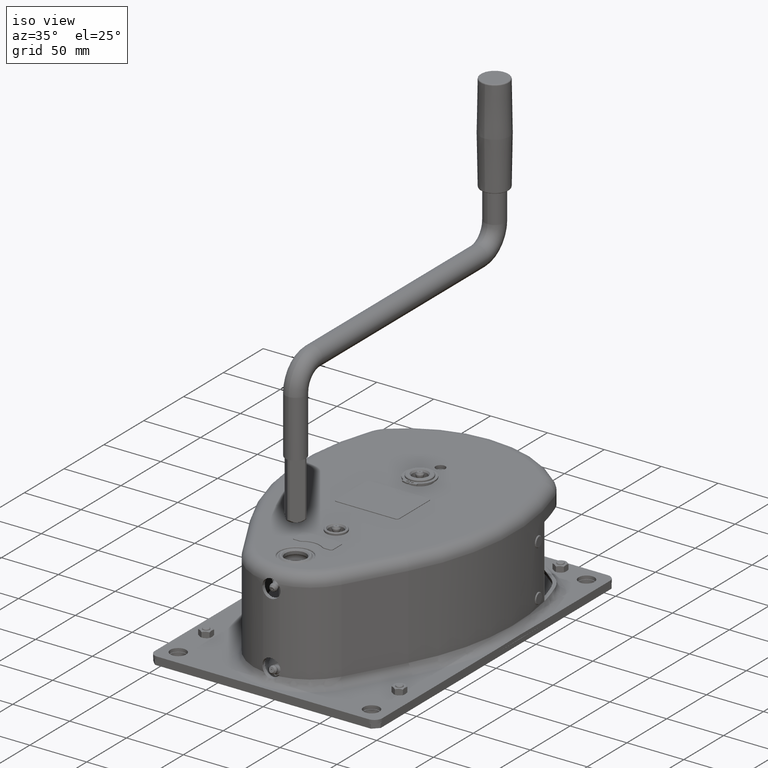
[diagram: clean part render]
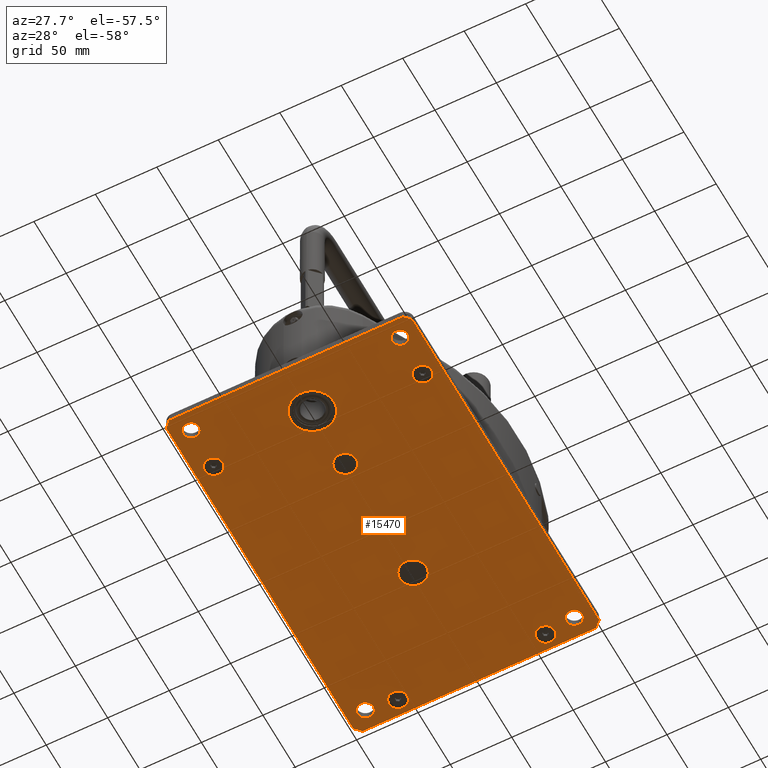
[diagram: tour spotlight — one face highlighted and labeled with its STEP entity id]
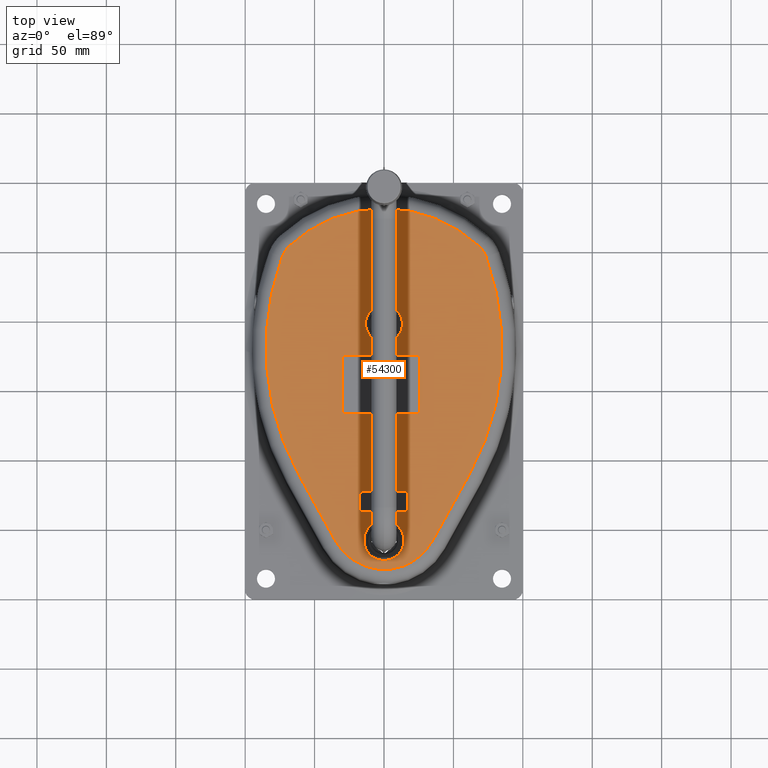
[diagram: tour spotlight — one face highlighted and labeled with its STEP entity id]
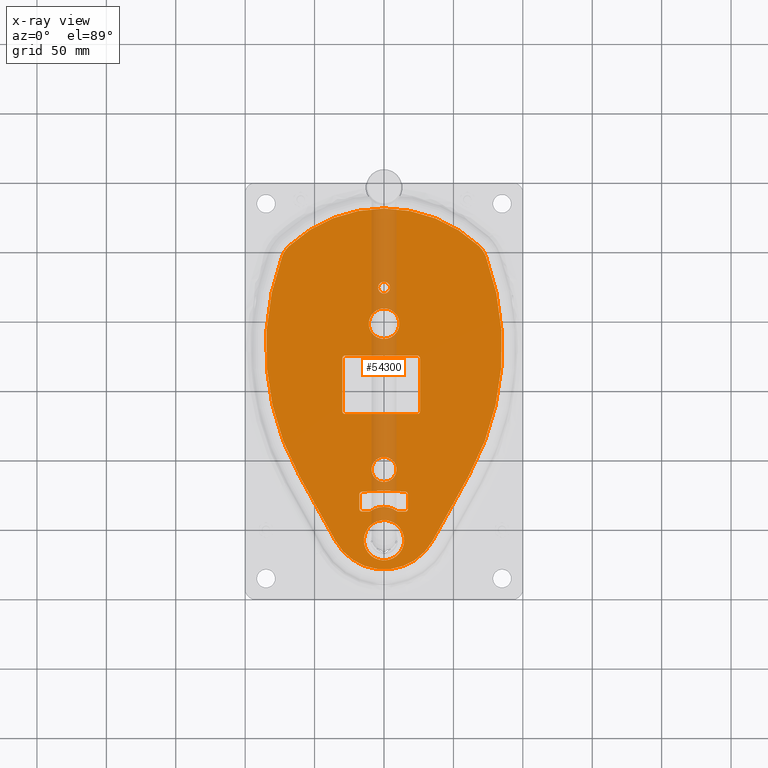
[diagram: x-ray of the same camera — body ghosted, this tour face saturated]
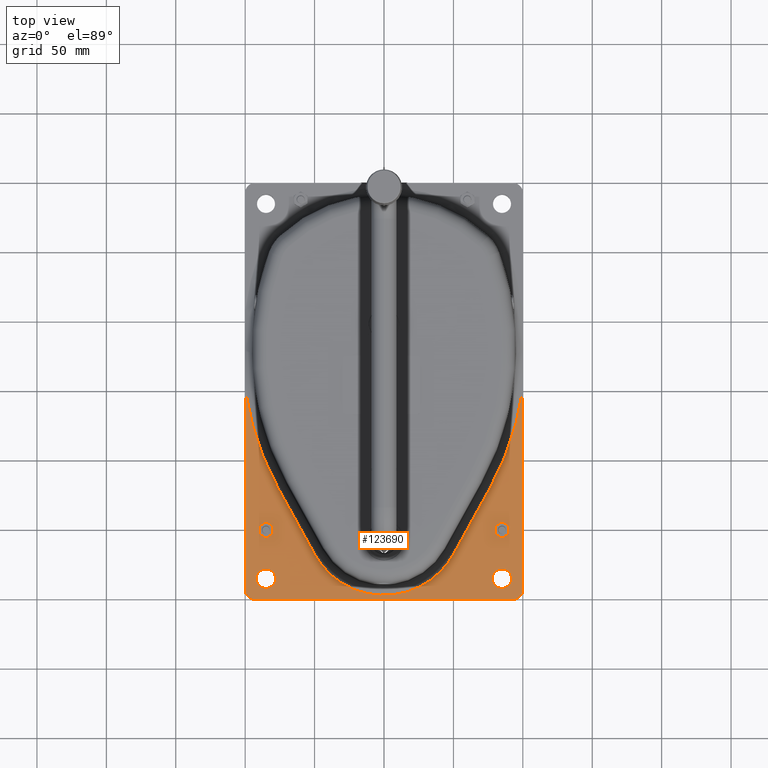
[diagram: tour spotlight — one face highlighted and labeled with its STEP entity id]
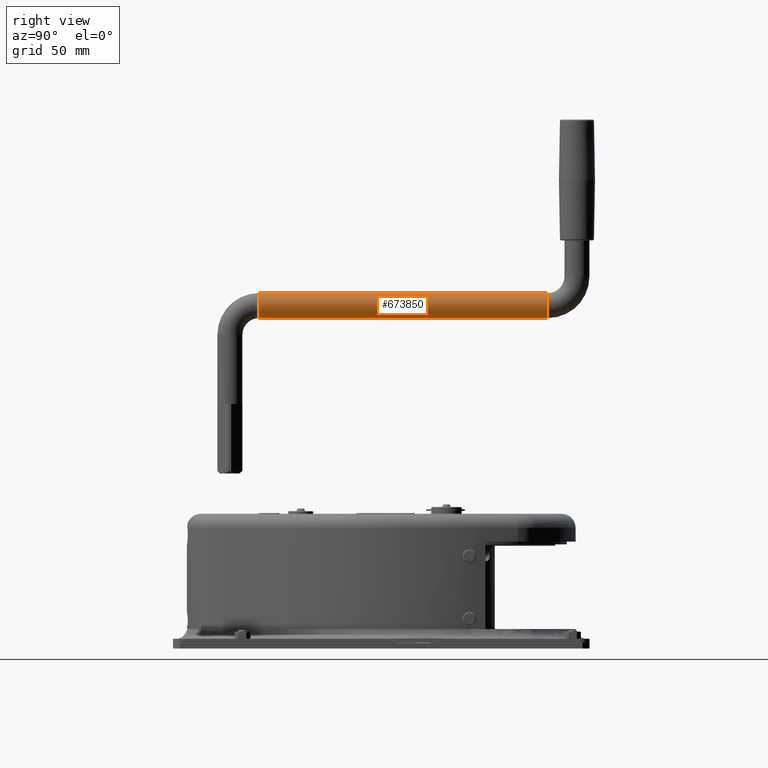
[diagram: tour spotlight — one face highlighted and labeled with its STEP entity id]
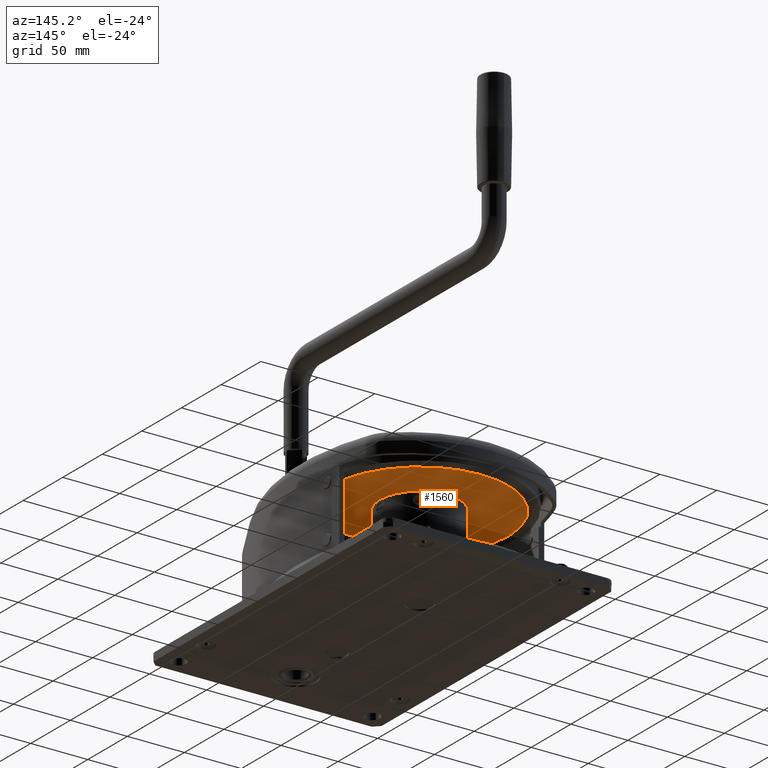
[diagram: tour spotlight — one face highlighted and labeled with its STEP entity id]
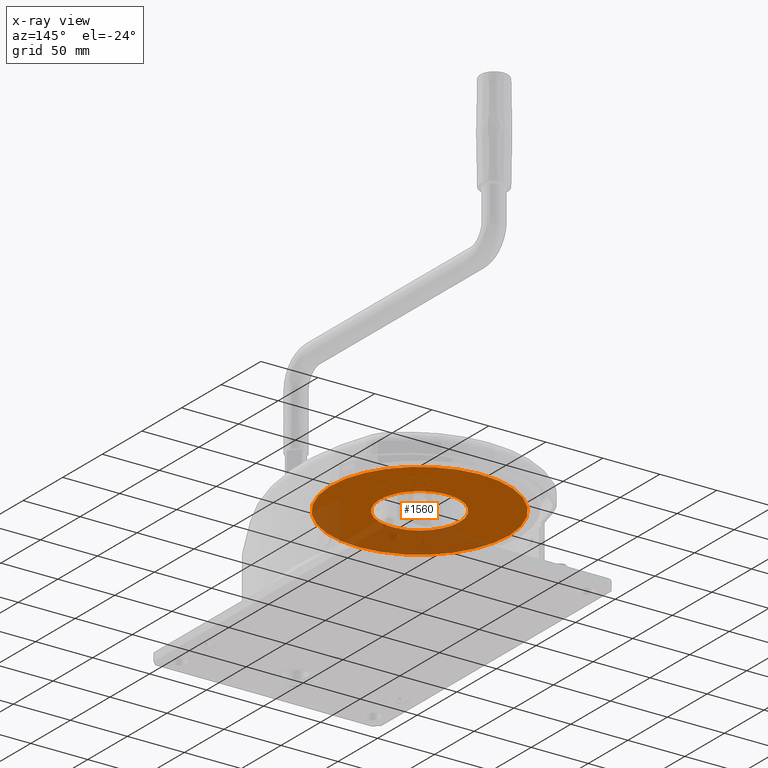
[diagram: x-ray of the same camera — body ghosted, this tour face saturated]
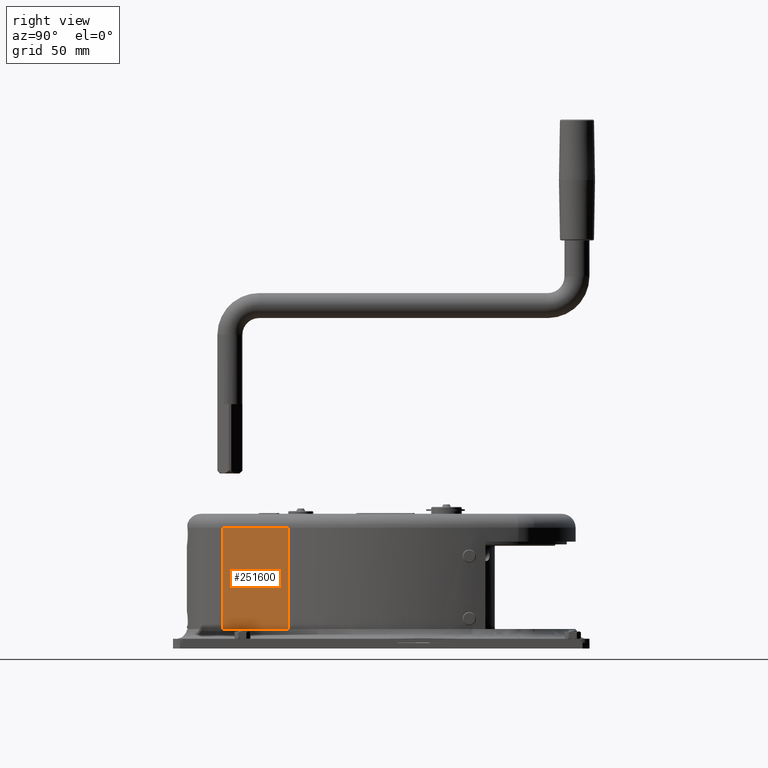
[diagram: tour spotlight — one face highlighted and labeled with its STEP entity id]
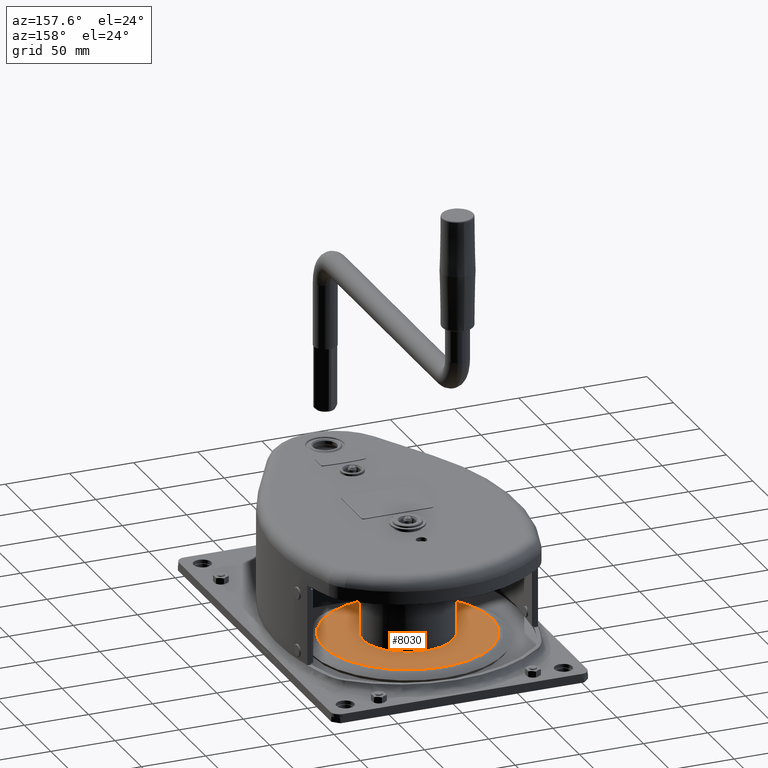
[diagram: tour spotlight — one face highlighted and labeled with its STEP entity id]
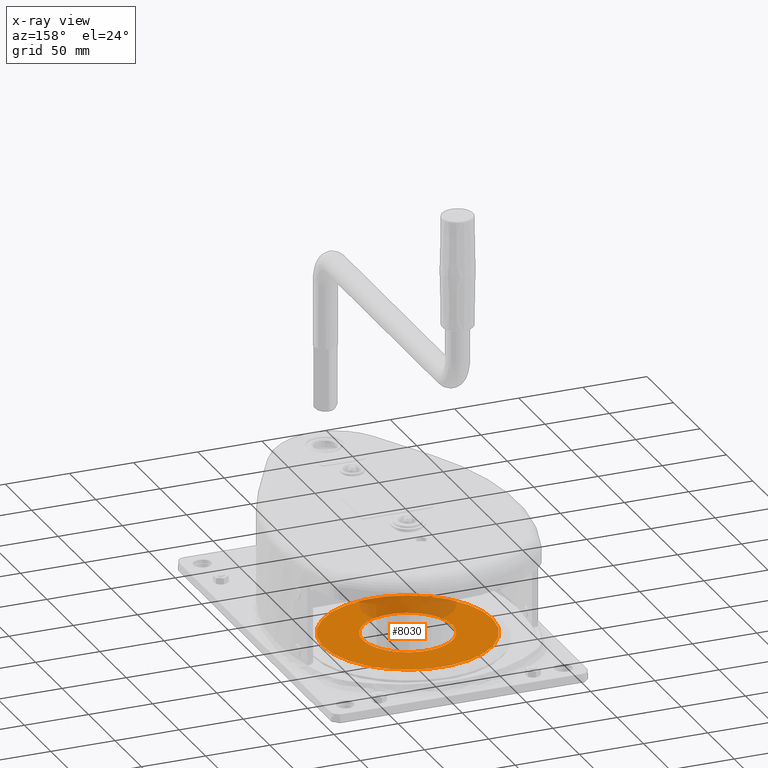
[diagram: x-ray of the same camera — body ghosted, this tour face saturated]
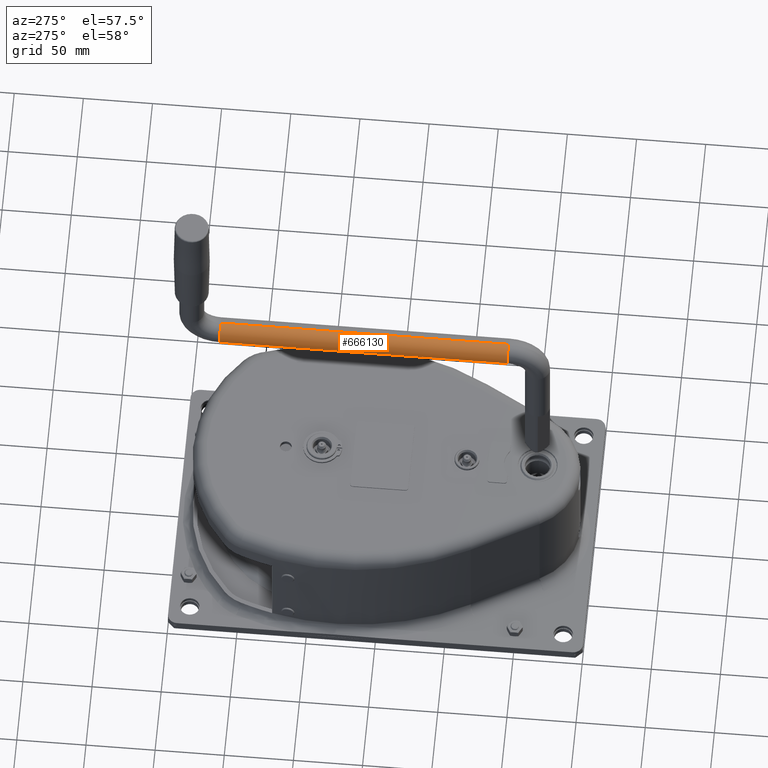
[diagram: tour spotlight — one face highlighted and labeled with its STEP entity id]
A machine part: a face-by-face anatomy tour. The part has 844 B-rep faces; the first image is the clean iso view, then the 8 largest visible faces are spotlighted one at a time (largest first), each with its STEP entity span.

Face 1 — auxiliary view, entity #15470. In plain terms, the highlighted planar face has unit normal (0, 0, 1).
Definition (entity closure, byte-faithful):
#12880=CARTESIAN_POINT('',(76.952232303296,-89.3566110790895,87.));
#12890=VERTEX_POINT('',#12880);
#12940=CARTESIAN_POINT('',(83.4512423218125,-89.4700517209318,87.));
#12950=DIRECTION('',(0.,0.,-1.));
#12960=DIRECTION('',(0.999847695156391,-0.0174524064372835,0.));
#12970=AXIS2_PLACEMENT_3D('',#12940,#12950,#12960);
#12980=CIRCLE('',#12970,6.5);
#12990=CARTESIAN_POINT('',(89.950252340329,-89.5834923627742,87.));
#13000=VERTEX_POINT('',#12990);
#13010=EDGE_CURVE('',#12890,#13000,#12980,.T.);
#13210=CARTESIAN_POINT('',(-96.5466454474941,198.715236589537,87.));
#13220=DIRECTION('',(0.,-0.,-1.));
#13230=DIRECTION('',(0.999847695156391,-0.0174524064372835,0.));
#13240=AXIS2_PLACEMENT_3D('',#13210,#13220,#13230);
#13250=PLANE('',#13240);
#13260=CARTESIAN_POINT('',(-86.522865854774,-86.5031426265936,87.));
#13270=DIRECTION('',(0.,0.,-1.));
#13280=DIRECTION('',(0.999847695156391,-0.0174524064372835,0.));
#13290=AXIS2_PLACEMENT_3D('',#13260,#13270,#13280);
#13300=CIRCLE('',#13290,6.5);
#13310=CARTESIAN_POINT('',(-80.0238558362575,-86.6165832684359,87.));
#13320=VERTEX_POINT('',#13310);
#13330=CARTESIAN_POINT('',(-93.0218758732905,-86.3897019847513,87.));
#13340=VERTEX_POINT('',#13330);
#13350=EDGE_CURVE('',#13320,#13340,#13300,.T.);
#13360=ORIENTED_EDGE('',*,*,#13350,.T.);
#13370=EDGE_CURVE('',#13340,#13320,#13300,.T.);
#13380=ORIENTED_EDGE('',*,*,#13370,.T.);
#13390=EDGE_LOOP('',(#13380,#13360));
#13400=FACE_BOUND('',#13390,.T.);
#13410=CARTESIAN_POINT('',(2.72257540421641,155.976240444397,87.));
#13420=DIRECTION('',(0.,0.,-1.));
#13430=DIRECTION('',(0.999847695156391,-0.0174524064372835,0.));
#13440=AXIS2_PLACEMENT_3D('',#13410,#13420,#13430);
#13450=CIRCLE('',#13440,17.5);
#13460=CARTESIAN_POINT('',(-14.7747592610204,156.281657557049,87.));
#13470=VERTEX_POINT('',#13460);
#13480=CARTESIAN_POINT('',(20.2199100694533,155.670823331745,87.));
#13490=VERTEX_POINT('',#13480);
#13500=EDGE_CURVE('',#13470,#13490,#13450,.T.);
#13510=ORIENTED_EDGE('',*,*,#13500,.T.);
#13520=EDGE_CURVE('',#13490,#13470,#13450,.T.);
#13530=ORIENTED_EDGE('',*,*,#13520,.T.);
#13540=EDGE_LOOP('',(#13530,#13510));
#13550=FACE_BOUND('',#13540,.T.);
#13560=CARTESIAN_POINT('',(1.83250267591495,104.984007991421,87.));
#13570=DIRECTION('',(0.,0.,-1.));
#13580=DIRECTION('',(0.999847695156391,-0.0174524064372835,0.));
#13590=AXIS2_PLACEMENT_3D('',#13560,#13570,#13580);
#13600=CIRCLE('',#13590,9.);
#13610=CARTESIAN_POINT('',(10.8311319323225,104.826936333485,87.));
#13620=VERTEX_POINT('',#13610);
#13630=CARTESIAN_POINT('',(-7.16612658049257,105.141079649357,87.));
#13640=VERTEX_POINT('',#13630);
#13650=EDGE_CURVE('',#13620,#13640,#13600,.T.);
#13660=ORIENTED_EDGE('',*,*,#13650,.T.);
#13670=EDGE_CURVE('',#13640,#13620,#13600,.T.);
#13680=ORIENTED_EDGE('',*,*,#13670,.T.);
#13690=EDGE_LOOP('',(#13680,#13660));
#13700=FACE_BOUND('',#13690,.T.);
#13710=CARTESIAN_POINT('',(1.84741111297626E-13,-2.8421709430404E-13,87.
));
#13720=DIRECTION('',(0.,0.,-1.));
#13730=DIRECTION('',(0.999847695156391,-0.0174524064372835,0.));
#13740=AXIS2_PLACEMENT_3D('',#13710,#13720,#13730);
#13750=CIRCLE('',#13740,11.);
#13760=CARTESIAN_POINT('',(10.9983246467205,-0.191976470810403,87.));
#13770=VERTEX_POINT('',#13760);
#13780=CARTESIAN_POINT('',(-10.9983246467201,0.191976470809833,87.));
#13790=VERTEX_POINT('',#13780);
#13800=EDGE_CURVE('',#13770,#13790,#13750,.T.);
#13810=ORIENTED_EDGE('',*,*,#13800,.T.);
#13820=EDGE_CURVE('',#13790,#13770,#13750,.T.);
#13830=ORIENTED_EDGE('',*,*,#13820,.T.);
#13840=EDGE_LOOP('',(#13830,#13810));
#13850=FACE_BOUND('',#13840,.T.);
#13860=CARTESIAN_POINT('',(-81.8107161167075,183.455735065632,87.));
#13870=DIRECTION('',(0.,0.,-1.));
#13880=DIRECTION('',(0.999847695156391,-0.0174524064372835,0.));
#13890=AXIS2_PLACEMENT_3D('',#13860,#13870,#13880);
#13900=CIRCLE('',#13890,6.5);
#13910=CARTESIAN_POINT('',(-75.311706098191,183.34229442379,87.));
#13920=VERTEX_POINT('',#13910);
#13930=CARTESIAN_POINT('',(-88.309726135224,183.569175707474,87.));
#13940=VERTEX_POINT('',#13930);
#13950=EDGE_CURVE('',#13920,#13940,#13900,.T.);
#13960=ORIENTED_EDGE('',*,*,#13950,.T.);
#13970=EDGE_CURVE('',#13940,#13920,#13900,.T.);
#13980=ORIENTED_EDGE('',*,*,#13970,.T.);
#13990=EDGE_LOOP('',(#13980,#13960));
#14000=FACE_BOUND('',#13990,.T.);
#14010=CARTESIAN_POINT('',(88.163392059879,180.488825971294,87.));
#14020=DIRECTION('',(0.,0.,-1.));
#14030=DIRECTION('',(0.999847695156391,-0.0174524064372835,0.));
#14040=AXIS2_PLACEMENT_3D('',#14010,#14020,#14030);
#14050=CIRCLE('',#14040,6.5);
#14060=CARTESIAN_POINT('',(81.6643820413625,180.602266613136,87.));
#14070=VERTEX_POINT('',#14060);
#14080=CARTESIAN_POINT('',(94.6624020783955,180.375385329452,87.));
#14090=VERTEX_POINT('',#14080);
#14100=EDGE_CURVE('',#14070,#14090,#14050,.T.);
#14110=ORIENTED_EDGE('',*,*,#14100,.T.);
#14120=EDGE_CURVE('',#14090,#14070,#14050,.T.);
#14130=ORIENTED_EDGE('',*,*,#14120,.T.);
#14140=EDGE_LOOP('',(#14130,#14110));
#14150=FACE_BOUND('',#14140,.T.);
#14160=CARTESIAN_POINT('',(-82.4215503420124,148.461065735158,87.));
#14170=DIRECTION('',(0.,0.,-1.));
#14180=DIRECTION('',(0.999847695156391,-0.0174524064372835,0.));
#14190=AXIS2_PLACEMENT_3D('',#14160,#14170,#14180);
#14200=CIRCLE('',#14190,7.5);
#14210=CARTESIAN_POINT('',(-74.9215503420124,148.461065735158,87.));
#14220=VERTEX_POINT('',#14210);
#14230=CARTESIAN_POINT('',(-89.9215503420124,148.461065735158,87.));
#14240=VERTEX_POINT('',#14230);
#14250=EDGE_CURVE('',#14220,#14240,#14200,.T.);
#14260=ORIENTED_EDGE('',*,*,#14250,.T.);
#14270=EDGE_CURVE('',#14240,#14220,#14200,.T.);
#14280=ORIENTED_EDGE('',*,*,#14270,.T.);
#14290=EDGE_LOOP('',(#14280,#14260));
#14300=FACE_BOUND('',#14290,.T.);
#14310=CARTESIAN_POINT('',(87.5525578345741,145.49415664082,87.));
#14320=DIRECTION('',(0.,0.,-1.));
#14330=DIRECTION('',(0.999847695156391,-0.0174524064372835,0.));
#14340=AXIS2_PLACEMENT_3D('',#14310,#14320,#14330);
#14350=CIRCLE('',#14340,7.5);
#14360=CARTESIAN_POINT('',(80.0525578345741,145.49415664082,87.));
#14370=VERTEX_POINT('',#14360);
#14380=CARTESIAN_POINT('',(95.0525578345741,145.49415664082,87.));
#14390=VERTEX_POINT('',#14380);
#14400=EDGE_CURVE('',#14370,#14390,#14350,.T.);
#14410=ORIENTED_EDGE('',*,*,#14400,.T.);
#14420=EDGE_CURVE('',#14390,#14370,#14350,.T.);
#14430=ORIENTED_EDGE('',*,*,#14420,.T.);
#14440=EDGE_LOOP('',(#14430,#14410));
#14450=FACE_BOUND('',#14440,.T.);
#14460=CARTESIAN_POINT('',(-61.5790306951761,-89.9389958729949,87.));
#14470=DIRECTION('',(0.,0.,-1.));
#14480=DIRECTION('',(0.999847695156391,-0.0174524064372835,0.));
#14490=AXIS2_PLACEMENT_3D('',#14460,#14470,#14480);
#14500=CIRCLE('',#14490,7.5);
#14510=CARTESIAN_POINT('',(-69.0790306951761,-89.9389958729949,87.));
#14520=VERTEX_POINT('',#14510);
#14530=CARTESIAN_POINT('',(-54.0790306951761,-89.9389958729949,87.));
#14540=VERTEX_POINT('',#14530);
#14550=EDGE_CURVE('',#14520,#14540,#14500,.T.);
#14560=ORIENTED_EDGE('',*,*,#14550,.T.);
#14570=EDGE_CURVE('',#14540,#14520,#14500,.T.);
#14580=ORIENTED_EDGE('',*,*,#14570,.T.);
#14590=EDGE_LOOP('',(#14580,#14560));
#14600=FACE_BOUND('',#14590,.T.);
#14610=CARTESIAN_POINT('',(58.4026927235909,-92.0332846454689,87.));
#14620=DIRECTION('',(0.,0.,-1.));
#14630=DIRECTION('',(0.999847695156391,-0.0174524064372835,0.));
#14640=AXIS2_PLACEMENT_3D('',#14610,#14620,#14630);
#14650=CIRCLE('',#14640,7.5);
#14660=CARTESIAN_POINT('',(50.9026927235909,-92.0332846454689,87.));
#14670=VERTEX_POINT('',#14660);
#14680=CARTESIAN_POINT('',(65.9026927235909,-92.0332846454689,87.));
#14690=VERTEX_POINT('',#14680);
#14700=EDGE_CURVE('',#14670,#14690,#14650,.T.);
#14710=ORIENTED_EDGE('',*,*,#14700,.T.);
#14720=EDGE_CURVE('',#14690,#14670,#14650,.T.);
#14730=ORIENTED_EDGE('',*,*,#14720,.T.);
#14740=EDGE_LOOP('',(#14730,#14710));
#14750=FACE_BOUND('',#14740,.T.);
#14760=EDGE_CURVE('',#13000,#12890,#12980,.T.);
#14770=ORIENTED_EDGE('',*,*,#14760,.T.);
#14780=ORIENTED_EDGE('',*,*,#13010,.T.);
#14790=EDGE_LOOP('',(#14780,#14770));
#14800=FACE_BOUND('',#14790,.T.);
#14810=CARTESIAN_POINT('',(-391.50171551863,203.863696488536,87.));
#14820=DIRECTION('',(0.694658370458997,-0.719339800338651,-0.));
#14830=VECTOR('',#14820,1.);
#14840=LINE('',#14810,#14830);
#14850=CARTESIAN_POINT('',(-101.695105346493,-96.2398334815983,87.));
#14860=VERTEX_POINT('',#14850);
#14870=CARTESIAN_POINT('',(-96.7831289028971,-101.326333989567,87.));
#14880=VERTEX_POINT('',#14870);
#14890=EDGE_CURVE('',#14860,#14880,#14840,.T.);
#14900=ORIENTED_EDGE('',*,*,#14890,.T.);
#14910=CARTESIAN_POINT('',(-101.782367378679,-101.23907195738,87.));
#14920=DIRECTION('',(0.0174524064372835,0.999847695156391,0.));
#14930=VECTOR('',#14920,1.);
#14940=LINE('',#14910,#14930);
#14950=CARTESIAN_POINT('',(-96.6339074796805,193.715998113755,87.));
#14960=VERTEX_POINT('',#14950);
#14970=EDGE_CURVE('',#14860,#14960,#14940,.T.);
#14980=ORIENTED_EDGE('',*,*,#14970,.F.);
#14990=CARTESIAN_POINT('',(-91.5474069717121,198.627974557351,87.));
#15000=DIRECTION('',(-0.719339800338651,-0.694658370458997,0.));
#15010=VECTOR('',#15000,1.);
#15020=LINE('',#14990,#15010);
#15030=CARTESIAN_POINT('',(-91.5474069717121,198.627974557351,87.));
#15040=VERTEX_POINT('',#15030);
#15050=EDGE_CURVE('',#15040,#14960,#15020,.T.);
#15060=ORIENTED_EDGE('',*,*,#15050,.T.);
#15070=CARTESIAN_POINT('',(-96.5466454474941,198.715236589537,87.));
#15080=DIRECTION('',(0.999847695156391,-0.0174524064372835,0.));
#15090=VECTOR('',#15080,1.);
#15100=LINE('',#15070,#15090);
#15110=CARTESIAN_POINT('',(98.4236551080023,195.312017334267,87.));
#15120=VERTEX_POINT('',#15110);
#15130=EDGE_CURVE('',#15040,#15120,#15100,.T.);
#15140=ORIENTED_EDGE('',*,*,#15130,.F.);
#15150=CARTESIAN_POINT('',(98.4236551080023,195.312017334267,87.));
#15160=DIRECTION('',(-0.694658370458997,0.719339800338651,0.));
#15170=VECTOR('',#15160,1.);
#15180=LINE('',#15150,#15170);
#15190=CARTESIAN_POINT('',(103.335631551598,190.225516826299,87.));
#15200=VERTEX_POINT('',#15190);
#15210=EDGE_CURVE('',#15200,#15120,#15180,.T.);
#15220=ORIENTED_EDGE('',*,*,#15210,.T.);
#15230=CARTESIAN_POINT('',(103.422893583784,195.224755302081,87.));
#15240=DIRECTION('',(-0.0174524064372835,-0.999847695156391,0.));
#15250=VECTOR('',#15240,1.);
#15260=LINE('',#15230,#15250);
#15270=CARTESIAN_POINT('',(98.2744336847856,-99.730314769055,87.));
#15280=VERTEX_POINT('',#15270);
#15290=EDGE_CURVE('',#15200,#15280,#15260,.T.);
#15300=ORIENTED_EDGE('',*,*,#15290,.F.);
#15310=CARTESIAN_POINT('',(398.37796365492,190.076295403082,87.));
#15320=DIRECTION('',(-0.719339800338651,-0.694658370458997,0.));
#15330=VECTOR('',#15320,1.);
#15340=LINE('',#15310,#15330);
#15350=CARTESIAN_POINT('',(93.1879331768171,-104.642291212651,87.));
#15360=VERTEX_POINT('',#15350);
#15370=EDGE_CURVE('',#15280,#15360,#15340,.T.);
#15380=ORIENTED_EDGE('',*,*,#15370,.F.);
#15390=CARTESIAN_POINT('',(98.1871716525991,-104.729553244837,87.));
#15400=DIRECTION('',(-0.999847695156391,0.0174524064372835,0.));
#15410=VECTOR('',#15400,1.);
#15420=LINE('',#15390,#15410);
#15430=EDGE_CURVE('',#15360,#14880,#15420,.T.);
#15440=ORIENTED_EDGE('',*,*,#15430,.F.);
#15450=EDGE_LOOP('',(#15440,#15380,#15300,#15220,#15140,#15060,#14980,
#14900));
#15460=FACE_OUTER_BOUND('',#15450,.T.);
#15470=ADVANCED_FACE('',(#13400,#13550,#13700,#13850,#14000,#14150,
#14300,#14450,#14600,#14750,#14800,#15460),#13250,.F.);

Face 2 — top view, entity #54300. An x-ray twin of the same camera follows (body ghosted, this face saturated) — the face is partly hidden behind the body. In plain terms, the highlighted planar face has unit normal (0, 0, 1).
Definition (entity closure, byte-faithful):
#50490=CARTESIAN_POINT('',(72.5701482000902,-49.5790844655635,-10.));
#50500=VERTEX_POINT('',#50490);
#50550=CARTESIAN_POINT('',(53.9114676440821,-42.3781373119702,-10.));
#50560=DIRECTION('',(0.,-0.,-1.));
#50570=DIRECTION('',(0.999847695156391,-0.0174524064372835,0.));
#50580=AXIS2_PLACEMENT_3D('',#50550,#50560,#50570);
#50590=CIRCLE('',#50580,20.);
#50600=CARTESIAN_POINT('',(67.3151618277441,-57.2220243443774,-10.));
#50610=VERTEX_POINT('',#50600);
#50620=EDGE_CURVE('',#50500,#50610,#50590,.T.);
#51140=CARTESIAN_POINT('',(-96.5466454474941,198.715236589537,-10.));
#51150=DIRECTION('',(0.,-0.,-1.));
#51160=DIRECTION('',(0.999847695156391,-0.0174524064372835,0.));
#51170=AXIS2_PLACEMENT_3D('',#51140,#51150,#51160);
#51180=PLANE('',#51170);
#51190=CARTESIAN_POINT('',(1.83250267591495,104.984007991421,-10.));
#51200=DIRECTION('',(0.,0.,1.));
#51210=DIRECTION('',(0.0174524064372835,0.999847695156391,0.));
#51220=AXIS2_PLACEMENT_3D('',#51190,#51200,#51210);
#51230=CIRCLE('',#51220,9.);
#51240=CARTESIAN_POINT('',(1.6754310179794,95.9853787350135,-10.));
#51250=VERTEX_POINT('',#51240);
#51260=CARTESIAN_POINT('',(1.9895743338505,113.982637247829,-10.));
#51270=VERTEX_POINT('',#51260);
#51280=EDGE_CURVE('',#51250,#51270,#51230,.T.);
#51290=ORIENTED_EDGE('',*,*,#51280,.T.);
#51300=EDGE_CURVE('',#51270,#51250,#51230,.T.);
#51310=ORIENTED_EDGE('',*,*,#51300,.T.);
#51320=EDGE_LOOP('',(#51310,#51290));
#51330=FACE_BOUND('',#51320,.T.);
#51340=CARTESIAN_POINT('',(-0.453762567369196,-25.9960400740665,-10.));
#51350=DIRECTION('',(0.,-0.,-1.));
#51360=DIRECTION('',(0.999847695156391,-0.0174524064372835,0.));
#51370=AXIS2_PLACEMENT_3D('',#51340,#51350,#51360);
#51380=CIRCLE('',#51370,4.25);
#51390=CARTESIAN_POINT('',(-4.70311527178386,-25.921867346708,-10.));
#51400=VERTEX_POINT('',#51390);
#51410=CARTESIAN_POINT('',(3.79559013704547,-26.070212801425,-10.));
#51420=VERTEX_POINT('',#51410);
#51430=EDGE_CURVE('',#51400,#51420,#51380,.T.);
#51440=ORIENTED_EDGE('',*,*,#51430,.F.);
#51450=EDGE_CURVE('',#51420,#51400,#51380,.T.);
#51460=ORIENTED_EDGE('',*,*,#51450,.F.);
#51470=EDGE_LOOP('',(#51460,#51440));
#51480=FACE_BOUND('',#51470,.T.);
#51490=CARTESIAN_POINT('',(2.7225754042164,155.976240444397,-10.));
#51500=DIRECTION('',(0.,0.,1.));
#51510=DIRECTION('',(0.0174524064372835,0.999847695156391,0.));
#51520=AXIS2_PLACEMENT_3D('',#51490,#51500,#51510);
#51530=CIRCLE('',#51520,14.5);
#51540=CARTESIAN_POINT('',(-11.7774245957836,155.976240444397,-10.));
#51550=VERTEX_POINT('',#51540);
#51560=CARTESIAN_POINT('',(17.2225754042164,155.976240444397,-10.));
#51570=VERTEX_POINT('',#51560);
#51580=EDGE_CURVE('',#51550,#51570,#51530,.T.);
#51590=ORIENTED_EDGE('',*,*,#51580,.T.);
#51600=CARTESIAN_POINT('',(2.97563529755701,170.474032024164,-10.));
#51610=VERTEX_POINT('',#51600);
#51620=EDGE_CURVE('',#51610,#51550,#51530,.T.);
#51630=ORIENTED_EDGE('',*,*,#51620,.T.);
#51640=EDGE_CURVE('',#51570,#51610,#51530,.T.);
#51650=ORIENTED_EDGE('',*,*,#51640,.T.);
#51660=EDGE_LOOP('',(#51650,#51630,#51590));
#51670=FACE_BOUND('',#51660,.T.);
#51680=CARTESIAN_POINT('',(-30.0045698413178,0.,-10.));
#51690=DIRECTION('',(0.0174524064372841,0.999847695156391,0.));
#51700=VECTOR('',#51690,1.);
#51710=LINE('',#51680,#51700);
#51720=CARTESIAN_POINT('',(-29.5591206937602,25.5197645720287,-10.));
#51730=VERTEX_POINT('',#51720);
#51740=CARTESIAN_POINT('',(-28.8959292491434,63.5139769879716,-10.));
#51750=VERTEX_POINT('',#51740);
#51760=EDGE_CURVE('',#51730,#51750,#51710,.T.);
#51770=ORIENTED_EDGE('',*,*,#51760,.F.);
#51780=CARTESIAN_POINT('',(-26.8962338588306,63.479072175097,-10.));
#51790=DIRECTION('',(1.85096894965842E-18,1.06041940105652E-16,1.));
#51800=DIRECTION('',(0.0174524064372847,0.999847695156391,
-1.0605809326696E-16));
#51810=AXIS2_PLACEMENT_3D('',#51780,#51790,#51800);
#51820=CIRCLE('',#51810,2.);
#51830=CARTESIAN_POINT('',(-26.861329045956,65.4787675654098,-10.));
#51840=VERTEX_POINT('',#51830);
#51850=EDGE_CURVE('',#51840,#51750,#51820,.T.);
#51860=ORIENTED_EDGE('',*,*,#51850,.T.);
#51870=CARTESIAN_POINT('',(0.,65.0099013228544,-10.));
#51880=DIRECTION('',(0.999847695156391,-0.0174524064372847,0.));
#51890=VECTOR('',#51880,1.);
#51900=LINE('',#51870,#51890);
#51910=CARTESIAN_POINT('',(25.1307511021764,64.571242430671,-10.));
#51920=VERTEX_POINT('',#51910);
#51930=EDGE_CURVE('',#51840,#51920,#51900,.T.);
#51940=ORIENTED_EDGE('',*,*,#51930,.F.);
#51950=CARTESIAN_POINT('',(25.0958462893018,62.5715470403582,-10.));
#51960=DIRECTION('',(-1.85096894965842E-18,-1.06041940105652E-16,-1.));
#51970=DIRECTION('',(-0.0174524064372847,-0.999847695156391,
1.0605809326696E-16));
#51980=AXIS2_PLACEMENT_3D('',#51950,#51960,#51970);
#51990=CIRCLE('',#51980,2.);
#52000=CARTESIAN_POINT('',(27.0955416796146,62.5366422274836,-10.));
#52010=VERTEX_POINT('',#52000);
#52020=EDGE_CURVE('',#51920,#52010,#51990,.T.);
#52030=ORIENTED_EDGE('',*,*,#52020,.F.);
#52040=CARTESIAN_POINT('',(26.0039605291411,0.,-10.));
#52050=DIRECTION('',(0.0174524064372847,0.999847695156391,0.));
#52060=VECTOR('',#52050,1.);
#52070=LINE('',#52040,#52060);
#52080=CARTESIAN_POINT('',(26.4323502349978,24.5424298115408,-10.));
#52090=VERTEX_POINT('',#52080);
#52100=EDGE_CURVE('',#52090,#52010,#52070,.T.);
#52110=ORIENTED_EDGE('',*,*,#52100,.T.);
#52120=CARTESIAN_POINT('',(24.432654844685,24.5773346244154,-10.));
#52130=DIRECTION('',(1.85096894965842E-18,1.06041940105652E-16,1.));
#52140=DIRECTION('',(0.0174524064372847,0.999847695156391,
-1.0605809326696E-16));
#52150=AXIS2_PLACEMENT_3D('',#52120,#52130,#52140);
#52160=CIRCLE('',#52150,2.);
#52170=CARTESIAN_POINT('',(24.3977500318104,22.5776392341026,-10.));
#52180=VERTEX_POINT('',#52170);
#52190=EDGE_CURVE('',#52180,#52090,#52160,.T.);
#52200=ORIENTED_EDGE('',*,*,#52190,.T.);
#52210=CARTESIAN_POINT('',(0.,23.0035035450103,-10.));
#52220=DIRECTION('',(-0.999847695156391,0.0174524064372834,0.));
#52230=VECTOR('',#52220,1.);
#52240=LINE('',#52210,#52230);
#52250=CARTESIAN_POINT('',(-27.5943301163219,23.4851643688414,-10.));
#52260=VERTEX_POINT('',#52250);
#52270=EDGE_CURVE('',#52180,#52260,#52240,.T.);
#52280=ORIENTED_EDGE('',*,*,#52270,.F.);
#52290=CARTESIAN_POINT('',(-27.5594253034474,25.4848597591541,-10.));
#52300=DIRECTION('',(1.85096894965842E-18,1.06041940105652E-16,1.));
#52310=DIRECTION('',(0.0174524064372847,0.999847695156391,
-1.0605809326696E-16));
#52320=AXIS2_PLACEMENT_3D('',#52290,#52300,#52310);
#52330=CIRCLE('',#52320,2.);
#52340=EDGE_CURVE('',#51730,#52260,#52330,.T.);
#52350=ORIENTED_EDGE('',*,*,#52340,.T.);
#52360=EDGE_LOOP('',(#52350,#52280,#52200,#52110,#52030,#51940,#51860,
#51770));
#52370=FACE_BOUND('',#52360,.T.);
#52380=CARTESIAN_POINT('',(17.5751527174481,133.059948922517,-10.));
#52390=DIRECTION('',(0.,-0.,-1.));
#52400=DIRECTION('',(0.999847695156391,-0.0174524064372835,0.));
#52410=AXIS2_PLACEMENT_3D('',#52380,#52390,#52400);
#52420=CIRCLE('',#52410,2.);
#52430=CARTESIAN_POINT('',(17.6100575303226,135.05964431283,-10.));
#52440=VERTEX_POINT('',#52430);
#52450=CARTESIAN_POINT('',(19.5748481077608,133.025044109643,-10.));
#52460=VERTEX_POINT('',#52450);
#52470=EDGE_CURVE('',#52440,#52460,#52420,.T.);
#52480=ORIENTED_EDGE('',*,*,#52470,.F.);
#52490=CARTESIAN_POINT('',(17.252887325748,0.,-10.));
#52500=DIRECTION('',(0.0174524064372835,0.999847695156391,0.));
#52510=VECTOR('',#52500,1.);
#52520=LINE('',#52490,#52510);
#52530=CARTESIAN_POINT('',(19.3948443448666,122.712635440041,-10.));
#52540=VERTEX_POINT('',#52530);
#52550=EDGE_CURVE('',#52540,#52460,#52520,.T.);
#52560=ORIENTED_EDGE('',*,*,#52550,.T.);
#52570=CARTESIAN_POINT('',(17.3951489545539,122.747540252915,-10.));
#52580=DIRECTION('',(0.,-0.,-1.));
#52590=DIRECTION('',(0.999847695156391,-0.0174524064372835,0.));
#52600=AXIS2_PLACEMENT_3D('',#52570,#52580,#52590);
#52610=CIRCLE('',#52600,2.);
#52620=CARTESIAN_POINT('',(17.5501901616735,120.753558752476,-10.));
#52630=VERTEX_POINT('',#52620);
#52640=EDGE_CURVE('',#52540,#52630,#52610,.T.);
#52650=ORIENTED_EDGE('',*,*,#52640,.F.);
#52660=CARTESIAN_POINT('',(5.28873967588159,284.83939569868,-10.));
#52670=DIRECTION('',(0.,-0.,-1.));
#52680=DIRECTION('',(0.999847695156391,-0.0174524064372835,0.));
#52690=AXIS2_PLACEMENT_3D('',#52660,#52670,#52680);
#52700=CIRCLE('',#52690,164.543322727942);
#52710=CARTESIAN_POINT('',(1.85062439538235,120.331996419287,-10.));
#52720=VERTEX_POINT('',#52710);
#52730=EDGE_CURVE('',#52630,#52720,#52700,.T.);
#52740=ORIENTED_EDGE('',*,*,#52730,.F.);
#52750=CARTESIAN_POINT('',(4.28886255199527,284.855162134308,-10.));
#52760=DIRECTION('',(0.,-0.,-1.));
#52770=DIRECTION('',(0.999847695156391,-0.0174524064372835,0.));
#52780=AXIS2_PLACEMENT_3D('',#52750,#52760,#52770);
#52790=CIRCLE('',#52780,164.541232103691);
#52800=CARTESIAN_POINT('',(-13.826189852675,121.314152174797,-10.));
#52810=VERTEX_POINT('',#52800);
#52820=EDGE_CURVE('',#52720,#52810,#52790,.T.);
#52830=ORIENTED_EDGE('',*,*,#52820,.F.);
#52840=CARTESIAN_POINT('',(-13.5999071283277,123.301309976448,-10.));
#52850=DIRECTION('',(0.,-0.,-1.));
#52860=DIRECTION('',(0.999847695156391,-0.0174524064372835,0.));
#52870=AXIS2_PLACEMENT_3D('',#52840,#52850,#52860);
#52880=CIRCLE('',#52870,1.99999999999999);
#52890=CARTESIAN_POINT('',(-15.5996025186405,123.336214789323,-10.));
#52900=VERTEX_POINT('',#52890);
#52910=EDGE_CURVE('',#52810,#52900,#52880,.T.);
#52920=ORIENTED_EDGE('',*,*,#52910,.F.);
#52930=CARTESIAN_POINT('',(-17.7524441557887,0.,-10.));
#52940=DIRECTION('',(-0.0174524064372835,-0.999847695156391,0.));
#52950=VECTOR('',#52940,1.);
#52960=LINE('',#52930,#52950);
#52970=CARTESIAN_POINT('',(-15.4198212227128,133.635878334948,-10.));
#52980=VERTEX_POINT('',#52970);
#52990=EDGE_CURVE('',#52980,#52900,#52960,.T.);
#53000=ORIENTED_EDGE('',*,*,#52990,.T.);
#53010=CARTESIAN_POINT('',(-13.4201258324001,133.600973522073,-10.));
#53020=DIRECTION('',(0.,-0.,-1.));
#53030=DIRECTION('',(0.999847695156391,-0.0174524064372835,0.));
#53040=AXIS2_PLACEMENT_3D('',#53010,#53020,#53030);
#53050=CIRCLE('',#53040,2.);
#53060=CARTESIAN_POINT('',(-13.3852210195255,135.600668912386,-10.));
#53070=VERTEX_POINT('',#53060);
#53080=EDGE_CURVE('',#52980,#53070,#53050,.T.);
#53090=ORIENTED_EDGE('',*,*,#53080,.F.);
#53100=CARTESIAN_POINT('',(0.,135.367029010411,-10.));
#53110=DIRECTION('',(-0.999847695156391,0.0174524064372822,0.));
#53120=VECTOR('',#53110,1.);
#53130=LINE('',#53100,#53120);
#53140=CARTESIAN_POINT('',(-8.4392501526449,135.514336669771,-10.));
#53150=VERTEX_POINT('',#53140);
#53160=EDGE_CURVE('',#53150,#53070,#53130,.T.);
#53170=ORIENTED_EDGE('',*,*,#53160,.T.);
#53180=CARTESIAN_POINT('',(-8.47415496551947,133.514641279458,-10.));
#53190=DIRECTION('',(0.,-0.,-1.));
#53200=DIRECTION('',(0.999847695156391,-0.0174524064372835,0.));
#53210=AXIS2_PLACEMENT_3D('',#53180,#53190,#53200);
#53220=CIRCLE('',#53210,2.);
#53230=CARTESIAN_POINT('',(-7.27347101027392,135.114128084536,-10.));
#53240=VERTEX_POINT('',#53230);
#53250=EDGE_CURVE('',#53150,#53240,#53220,.T.);
#53260=ORIENTED_EDGE('',*,*,#53250,.F.);
#53270=CARTESIAN_POINT('',(2.33200063169043,147.910022525153,-10.));
#53280=DIRECTION('',(0.,-0.,-1.));
#53290=DIRECTION('',(0.999847695156391,-0.0174524064372835,0.));
#53300=AXIS2_PLACEMENT_3D('',#53270,#53280,#53290);
#53310=CIRCLE('',#53300,16.);
#53320=CARTESIAN_POINT('',(11.4850506040258,134.786696871801,-10.));
#53330=VERTEX_POINT('',#53320);
#53340=EDGE_CURVE('',#53330,#53240,#53310,.T.);
#53350=ORIENTED_EDGE('',*,*,#53340,.T.);
#53360=CARTESIAN_POINT('',(12.6291818505677,133.146281165132,-10.));
#53370=DIRECTION('',(0.,-0.,-1.));
#53380=DIRECTION('',(0.999847695156391,-0.0174524064372835,0.));
#53390=AXIS2_PLACEMENT_3D('',#53360,#53370,#53380);
#53400=CIRCLE('',#53390,2.00000000000002);
#53410=CARTESIAN_POINT('',(12.6640866634423,135.145976555444,-10.));
#53420=VERTEX_POINT('',#53410);
#53430=EDGE_CURVE('',#53330,#53420,#53400,.T.);
#53440=ORIENTED_EDGE('',*,*,#53430,.F.);
#53450=CARTESIAN_POINT('',(0.,135.367029010411,-10.));
#53460=DIRECTION('',(-0.999847695156391,0.0174524064372841,0.));
#53470=VECTOR('',#53460,1.);
#53480=LINE('',#53450,#53470);
#53490=EDGE_CURVE('',#52440,#53420,#53480,.T.);
#53500=ORIENTED_EDGE('',*,*,#53490,.T.);
#53510=EDGE_LOOP('',(#53500,#53440,#53350,#53260,#53170,#53090,#53000,
#52920,#52830,#52740,#52650,#52560,#52480));
#53520=FACE_BOUND('',#53510,.T.);
#53530=CARTESIAN_POINT('',(1.84741111297626E-13,-2.8421709430404E-13,
-10.));
#53540=DIRECTION('',(0.,0.,1.));
#53550=DIRECTION('',(0.0174524064372835,0.999847695156391,0.));
#53560=AXIS2_PLACEMENT_3D('',#53530,#53540,#53550);
#53570=CIRCLE('',#53560,11.);
#53580=CARTESIAN_POINT('',(0.191976470810303,10.99832464672,-10.));
#53590=VERTEX_POINT('',#53580);
#53600=CARTESIAN_POINT('',(-0.191976470809935,-10.9983246467206,-10.));
#53610=VERTEX_POINT('',#53600);
#53620=EDGE_CURVE('',#53590,#53610,#53570,.T.);
#53630=ORIENTED_EDGE('',*,*,#53620,.T.);
#53640=EDGE_CURVE('',#53610,#53590,#53570,.T.);
#53650=ORIENTED_EDGE('',*,*,#53640,.T.);
#53660=EDGE_LOOP('',(#53650,#53630));
#53670=FACE_BOUND('',#53660,.T.);
#53680=CARTESIAN_POINT('',(2.39097968190802,136.979134236425,-10.));
#53690=DIRECTION('',(0.,-0.,-1.));
#53700=DIRECTION('',(0.999847695156391,-0.0174524064372835,0.));
#53710=AXIS2_PLACEMENT_3D('',#53680,#53690,#53700);
#53720=CIRCLE('',#53710,40.);
#53730=CARTESIAN_POINT('',(-32.2545573199754,156.971301849046,-10.));
#53740=VERTEX_POINT('',#53730);
#53750=CARTESIAN_POINT('',(37.7131281464134,155.750011356353,-10.));
#53760=VERTEX_POINT('',#53750);
#53770=EDGE_CURVE('',#53740,#53760,#53720,.T.);
#53780=ORIENTED_EDGE('',*,*,#53770,.T.);
#53790=CARTESIAN_POINT('',(-9.04759503807331,197.187934983483,-10.));
#53800=DIRECTION('',(-0.499804190315523,-0.866138425047085,0.));
#53810=VECTOR('',#53800,1.);
#53820=LINE('',#53790,#53810);
#53830=CARTESIAN_POINT('',(-59.2856018580911,110.127704301693,-10.));
#53840=VERTEX_POINT('',#53830);
#53850=EDGE_CURVE('',#53740,#53840,#53820,.T.);
#53860=ORIENTED_EDGE('',*,*,#53850,.F.);
#53870=CARTESIAN_POINT('',(105.280698900855,15.1649081417436,-10.));
#53880=DIRECTION('',(0.,-0.,-1.));
#53890=DIRECTION('',(0.999847695156391,-0.0174524064372835,0.));
#53900=AXIS2_PLACEMENT_3D('',#53870,#53880,#53890);
#53910=CIRCLE('',#53900,190.);
#53920=CARTESIAN_POINT('',(-74.2562255214051,-47.0162205790802,-10.));
#53930=VERTEX_POINT('',#53920);
#53940=EDGE_CURVE('',#53930,#53840,#53910,.T.);
#53950=ORIENTED_EDGE('',*,*,#53940,.T.);
#53960=CARTESIAN_POINT('',(-55.3576018980093,-40.4708386084671,-10.));
#53970=DIRECTION('',(0.,-0.,-1.));
#53980=DIRECTION('',(0.999847695156391,-0.0174524064372835,0.));
#53990=AXIS2_PLACEMENT_3D('',#53960,#53970,#53980);
#54000=CIRCLE('',#53990,20.);
#54010=CARTESIAN_POINT('',(-69.2711750998701,-54.8379009649985,-10.));
#54020=VERTEX_POINT('',#54010);
#54030=EDGE_CURVE('',#54020,#53930,#54000,.T.);
#54040=ORIENTED_EDGE('',*,*,#54030,.T.);
#54050=CARTESIAN_POINT('',(0.296690909434005,16.9974108176584,-10.));
#54060=DIRECTION('',(0.,-0.,-1.));
#54070=DIRECTION('',(0.999847695156391,-0.0174524064372835,0.));
#54080=AXIS2_PLACEMENT_3D('',#54050,#54060,#54070);
#54090=CIRCLE('',#54080,100.);
#54100=EDGE_CURVE('',#50610,#54020,#54090,.T.);
#54110=ORIENTED_EDGE('',*,*,#54100,.T.);
#54120=ORIENTED_EDGE('',*,*,#50620,.T.);
#54130=CARTESIAN_POINT('',(-104.687317081987,18.8299134935731,-10.));
#54140=DIRECTION('',(0.,-0.,-1.));
#54150=DIRECTION('',(0.999847695156391,-0.0174524064372835,0.));
#54160=AXIS2_PLACEMENT_3D('',#54130,#54140,#54150);
#54170=CIRCLE('',#54160,190.);
#54180=CARTESIAN_POINT('',(63.0928881244137,107.991579813231,-10.));
#54190=VERTEX_POINT('',#54180);
#54200=EDGE_CURVE('',#54190,#50500,#54170,.T.);
#54210=ORIENTED_EDGE('',*,*,#54200,.T.);
#54220=CARTESIAN_POINT('',(15.9238431743633,196.752056908134,-10.));
#54230=DIRECTION('',(-0.4692719279982,0.883053711612636,-0.));
#54240=VECTOR('',#54230,1.);
#54250=LINE('',#54220,#54240);
#54260=EDGE_CURVE('',#54190,#53760,#54250,.T.);
#54270=ORIENTED_EDGE('',*,*,#54260,.F.);
#54280=EDGE_LOOP('',(#54270,#54210,#54120,#54110,#54040,#53950,#53860,
#53780));
#54290=FACE_OUTER_BOUND('',#54280,.T.);
#54300=ADVANCED_FACE('',(#51330,#51480,#51670,#52370,#53520,#53670,
#54290),#51180,.T.);

Face 3 — top view, entity #123690. In plain terms, the highlighted planar face has unit normal (0, 0, 1).
Definition (entity closure, byte-faithful):
#116510=CARTESIAN_POINT('',(103.300726738723,188.225821435986,80.));
#116520=VERTEX_POINT('',#116510);
#116550=CARTESIAN_POINT('',(98.1871716525991,-104.729553244837,80.));
#116560=DIRECTION('',(0.0174524064372835,0.999847695156391,0.));
#116570=VECTOR('',#116560,1.);
#116580=LINE('',#116550,#116570);
#116590=CARTESIAN_POINT('',(100.782438736314,43.9531984027881,80.));
#116600=VERTEX_POINT('',#116590);
#116610=EDGE_CURVE('',#116600,#116520,#116580,.T.);
#118990=CARTESIAN_POINT('',(-96.5466454474941,198.715236589537,80.));
#119000=DIRECTION('',(-0.0174524064372835,-0.999847695156391,0.));
#119010=VECTOR('',#119000,1.);
#119020=LINE('',#118990,#119010);
#120050=CARTESIAN_POINT('',(-99.1871002950009,47.4436796881206,80.));
#120060=VERTEX_POINT('',#120050);
#120090=CARTESIAN_POINT('',(-96.6688122925551,191.716302723443,80.));
#120100=VERTEX_POINT('',#120090);
#120110=EDGE_CURVE('',#120100,#120060,#119020,.T.);
#120400=CARTESIAN_POINT('',(96.4239597176895,195.346922147141,80.));
#120410=VERTEX_POINT('',#120400);
#120440=CARTESIAN_POINT('',(96.3017928726285,188.347988281047,80.));
#120450=DIRECTION('',(0.,-0.,-1.));
#120460=DIRECTION('',(0.999847695156391,-0.0174524064372835,0.));
#120470=AXIS2_PLACEMENT_3D('',#120440,#120450,#120460);
#120480=CIRCLE('',#120470,7.);
#120490=EDGE_CURVE('',#120410,#116520,#120480,.T.);
#120690=CARTESIAN_POINT('',(-89.5477115813994,198.593069744476,80.));
#120700=VERTEX_POINT('',#120690);
#120730=CARTESIAN_POINT('',(103.422893583784,195.22475530208,80.));
#120740=DIRECTION('',(-0.999847695156391,0.0174524064372835,0.));
#120750=VECTOR('',#120740,1.);
#120760=LINE('',#120730,#120750);
#120770=EDGE_CURVE('',#120410,#120700,#120760,.T.);
#120880=CARTESIAN_POINT('',(-89.6698784264604,191.594135878381,80.));
#120890=DIRECTION('',(0.,-0.,-1.));
#120900=DIRECTION('',(0.999847695156391,-0.0174524064372835,0.));
#120910=AXIS2_PLACEMENT_3D('',#120880,#120890,#120900);
#120920=CIRCLE('',#120910,7.);
#120930=EDGE_CURVE('',#120100,#120700,#120920,.T.);
#121190=CARTESIAN_POINT('',(-96.5466454474941,198.715236589537,80.));
#121200=DIRECTION('',(0.,-0.,-1.));
#121210=DIRECTION('',(0.999847695156391,-0.0174524064372835,0.));
#121220=AXIS2_PLACEMENT_3D('',#121190,#121200,#121210);
#121230=PLANE('',#121220);
#121240=CARTESIAN_POINT('',(-82.4215503420124,148.461065735158,80.));
#121250=DIRECTION('',(3.20595505212568E-18,1.8366904192622E-16,-1.));
#121260=DIRECTION('',(-0.999847695156391,0.0174524064372835,
6.93334779979405E-33));
#121270=AXIS2_PLACEMENT_3D('',#121240,#121250,#121260);
#121280=CIRCLE('',#121270,5.00000000000002);
#121290=CARTESIAN_POINT('',(-87.4207888177944,148.548327767345,80.));
#121300=VERTEX_POINT('',#121290);
#121310=CARTESIAN_POINT('',(-84.8455984432441,152.834164270855,80.));
#121320=VERTEX_POINT('',#121310);
#121330=EDGE_CURVE('',#121300,#121320,#121280,.T.);
#121340=ORIENTED_EDGE('',*,*,#121330,.F.);
#121350=CARTESIAN_POINT('',(-82.4215503420124,148.461065735158,80.));
#121360=DIRECTION('',(3.20595505212568E-18,1.8366904192622E-16,-1.));
#121370=DIRECTION('',(-0.999847695156391,0.0174524064372835,
6.93334779979405E-33));
#121380=AXIS2_PLACEMENT_3D('',#121350,#121360,#121370);
#121390=CIRCLE('',#121380,5.00000000000002);
#121400=CARTESIAN_POINT('',(-79.8463599674621,152.746902238669,80.));
#121410=VERTEX_POINT('',#121400);
#121420=EDGE_CURVE('',#121320,#121410,#121390,.T.);
#121430=ORIENTED_EDGE('',*,*,#121420,.F.);
#121440=CARTESIAN_POINT('',(-82.4215503420124,148.461065735158,80.));
#121450=DIRECTION('',(3.20595505212568E-18,1.8366904192622E-16,-1.));
#121460=DIRECTION('',(-0.999847695156391,0.0174524064372835,
6.93334779979405E-33));
#121470=AXIS2_PLACEMENT_3D('',#121440,#121450,#121460);
#121480=CIRCLE('',#121470,5.00000000000002);
#121490=CARTESIAN_POINT('',(-77.4223118662304,148.373803702972,80.));
#121500=VERTEX_POINT('',#121490);
#121510=EDGE_CURVE('',#121410,#121500,#121480,.T.);
#121520=ORIENTED_EDGE('',*,*,#121510,.F.);
#121530=CARTESIAN_POINT('',(-82.4215503420124,148.461065735158,80.));
#121540=DIRECTION('',(3.20595505212568E-18,1.8366904192622E-16,-1.));
#121550=DIRECTION('',(-0.999847695156391,0.0174524064372835,
6.93334779979405E-33));
#121560=AXIS2_PLACEMENT_3D('',#121530,#121540,#121550);
#121570=CIRCLE('',#121560,5.00000000000002);
#121580=CARTESIAN_POINT('',(-79.9975022407808,144.087967199461,80.));
#121590=VERTEX_POINT('',#121580);
#121600=EDGE_CURVE('',#121500,#121590,#121570,.T.);
#121610=ORIENTED_EDGE('',*,*,#121600,.F.);
#121620=CARTESIAN_POINT('',(-82.4215503420124,148.461065735158,80.));
#121630=DIRECTION('',(3.20595505212568E-18,1.8366904192622E-16,-1.));
#121640=DIRECTION('',(-0.999847695156391,0.0174524064372835,
6.93334779979405E-33));
#121650=AXIS2_PLACEMENT_3D('',#121620,#121630,#121640);
#121660=CIRCLE('',#121650,5.00000000000002);
#121670=CARTESIAN_POINT('',(-84.9967407165628,144.175229231648,80.));
#121680=VERTEX_POINT('',#121670);
#121690=EDGE_CURVE('',#121590,#121680,#121660,.T.);
#121700=ORIENTED_EDGE('',*,*,#121690,.F.);
#121710=CARTESIAN_POINT('',(-82.4215503420124,148.461065735158,80.));
#121720=DIRECTION('',(3.20595505212568E-18,1.8366904192622E-16,-1.));
#121730=DIRECTION('',(-0.999847695156391,0.0174524064372835,
6.93334779979405E-33));
#121740=AXIS2_PLACEMENT_3D('',#121710,#121720,#121730);
#121750=CIRCLE('',#121740,5.00000000000002);
#121760=EDGE_CURVE('',#121680,#121300,#121750,.T.);
#121770=ORIENTED_EDGE('',*,*,#121760,.F.);
#121780=EDGE_LOOP('',(#121770,#121700,#121610,#121520,#121430,#121340));
#121790=FACE_BOUND('',#121780,.T.);
#121800=CARTESIAN_POINT('',(88.163392059879,180.488825971294,80.));
#121810=DIRECTION('',(0.,-0.,-1.));
#121820=DIRECTION('',(0.999847695156391,-0.0174524064372835,0.));
#121830=AXIS2_PLACEMENT_3D('',#121800,#121810,#121820);
#121840=CIRCLE('',#121830,7.);
#121850=CARTESIAN_POINT('',(81.1644581937843,180.610992816355,80.));
#121860=VERTEX_POINT('',#121850);
#121870=CARTESIAN_POINT('',(95.1623259259737,180.366659126233,80.));
#121880=VERTEX_POINT('',#121870);
#121890=EDGE_CURVE('',#121860,#121880,#121840,.T.);
#121900=ORIENTED_EDGE('',*,*,#121890,.F.);
#121910=EDGE_CURVE('',#121880,#121860,#121840,.T.);
#121920=ORIENTED_EDGE('',*,*,#121910,.F.);
#121930=EDGE_LOOP('',(#121920,#121900));
#121940=FACE_BOUND('',#121930,.T.);
#121950=CARTESIAN_POINT('',(87.5525578345741,145.49415664082,80.));
#121960=DIRECTION('',(3.20595505212568E-18,1.8366904192622E-16,-1.));
#121970=DIRECTION('',(-0.999847695156391,0.0174524064372835,
6.93334779979405E-33));
#121980=AXIS2_PLACEMENT_3D('',#121950,#121960,#121970);
#121990=CIRCLE('',#121980,5.00000000000002);
#122000=CARTESIAN_POINT('',(82.5533193587921,145.581418673007,80.));
#122010=VERTEX_POINT('',#122000);
#122020=CARTESIAN_POINT('',(85.1285097333425,149.867255176517,80.));
#122030=VERTEX_POINT('',#122020);
#122040=EDGE_CURVE('',#122010,#122030,#121990,.T.);
#122050=ORIENTED_EDGE('',*,*,#122040,.F.);
#122060=CARTESIAN_POINT('',(87.5525578345741,145.49415664082,80.));
#122070=DIRECTION('',(3.20595505212568E-18,1.8366904192622E-16,-1.));
#122080=DIRECTION('',(-0.999847695156391,0.0174524064372835,
6.93334779979405E-33));
#122090=AXIS2_PLACEMENT_3D('',#122060,#122070,#122080);
#122100=CIRCLE('',#122090,5.00000000000002);
#122110=CARTESIAN_POINT('',(90.1277482091244,149.779993144331,80.));
#122120=VERTEX_POINT('',#122110);
#122130=EDGE_CURVE('',#122030,#122120,#122100,.T.);
#122140=ORIENTED_EDGE('',*,*,#122130,.F.);
#122150=CARTESIAN_POINT('',(87.5525578345741,145.49415664082,80.));
#122160=DIRECTION('',(3.20595505212568E-18,1.8366904192622E-16,-1.));
#122170=DIRECTION('',(-0.999847695156391,0.0174524064372835,
6.93334779979405E-33));
#122180=AXIS2_PLACEMENT_3D('',#122150,#122160,#122170);
#122190=CIRCLE('',#122180,5.00000000000002);
#122200=CARTESIAN_POINT('',(92.5517963103561,145.406894608634,80.));
#122210=VERTEX_POINT('',#122200);
#122220=EDGE_CURVE('',#122120,#122210,#122190,.T.);
#122230=ORIENTED_EDGE('',*,*,#122220,.F.);
#122240=CARTESIAN_POINT('',(87.5525578345741,145.49415664082,80.));
#122250=DIRECTION('',(3.20595505212568E-18,1.8366904192622E-16,-1.));
#122260=DIRECTION('',(-0.999847695156391,0.0174524064372835,
6.93334779979405E-33));
#122270=AXIS2_PLACEMENT_3D('',#122240,#122250,#122260);
#122280=CIRCLE('',#122270,5.00000000000002);
#122290=CARTESIAN_POINT('',(89.9766059358058,141.121058105123,80.));
#122300=VERTEX_POINT('',#122290);
#122310=EDGE_CURVE('',#122210,#122300,#122280,.T.);
#122320=ORIENTED_EDGE('',*,*,#122310,.F.);
#122330=CARTESIAN_POINT('',(87.5525578345741,145.49415664082,80.));
#122340=DIRECTION('',(3.20595505212568E-18,1.8366904192622E-16,-1.));
#122350=DIRECTION('',(-0.999847695156391,0.0174524064372835,
6.93334779979405E-33));
#122360=AXIS2_PLACEMENT_3D('',#122330,#122340,#122350);
#122370=CIRCLE('',#122360,5.00000000000002);
#122380=CARTESIAN_POINT('',(84.9773674600238,141.20832013731,80.));
#122390=VERTEX_POINT('',#122380);
#122400=EDGE_CURVE('',#122300,#122390,#122370,.T.);
#122410=ORIENTED_EDGE('',*,*,#122400,.F.);
#122420=CARTESIAN_POINT('',(87.5525578345741,145.49415664082,80.));
#122430=DIRECTION('',(3.20595505212568E-18,1.8366904192622E-16,-1.));
#122440=DIRECTION('',(-0.999847695156391,0.0174524064372835,
6.93334779979405E-33));
#122450=AXIS2_PLACEMENT_3D('',#122420,#122430,#122440);
#122460=CIRCLE('',#122450,5.00000000000002);
#122470=EDGE_CURVE('',#122390,#122010,#122460,.T.);
#122480=ORIENTED_EDGE('',*,*,#122470,.F.);
#122490=EDGE_LOOP('',(#122480,#122410,#122320,#122230,#122140,#122050));
#122500=FACE_BOUND('',#122490,.T.);
#122510=CARTESIAN_POINT('',(-81.8107161167075,183.455735065632,80.));
#122520=DIRECTION('',(0.,-0.,-1.));
#122530=DIRECTION('',(0.999847695156391,-0.0174524064372835,0.));
#122540=AXIS2_PLACEMENT_3D('',#122510,#122520,#122530);
#122550=CIRCLE('',#122540,7.);
#122560=CARTESIAN_POINT('',(-88.8096499828022,183.577901910693,80.));
#122570=VERTEX_POINT('',#122560);
#122580=CARTESIAN_POINT('',(-74.8117822506128,183.333568220571,80.));
#122590=VERTEX_POINT('',#122580);
#122600=EDGE_CURVE('',#122570,#122590,#122550,.T.);
#122610=ORIENTED_EDGE('',*,*,#122600,.F.);
#122620=EDGE_CURVE('',#122590,#122570,#122550,.T.);
#122630=ORIENTED_EDGE('',*,*,#122620,.F.);
#122640=EDGE_LOOP('',(#122630,#122610));
#122650=FACE_BOUND('',#122640,.T.);
#122660=ORIENTED_EDGE('',*,*,#116610,.F.);
#122670=ORIENTED_EDGE('',*,*,#120490,.T.);
#122680=ORIENTED_EDGE('',*,*,#120770,.F.);
#122690=ORIENTED_EDGE('',*,*,#120930,.T.);
#122700=ORIENTED_EDGE('',*,*,#120110,.F.);
#122710=CARTESIAN_POINT('',(-90.3200556012915,-52.5797952541012,80.));
#122720=CARTESIAN_POINT('',(-90.4410247330788,-52.2299720672284,80.));
#122730=CARTESIAN_POINT('',(-90.5613935581654,-51.8799412792595,80.));
#122740=CARTESIAN_POINT('',(-93.1036679221178,-44.4102403549494,80.));
#122750=CARTESIAN_POINT('',(-95.1371604526582,-37.1634754640695,80.));
#122760=CARTESIAN_POINT('',(-98.6279890318529,-21.4846917592984,80.));
#122770=CARTESIAN_POINT('',(-99.9663917189243,-13.0410837653149,80.));
#122780=CARTESIAN_POINT('',(-101.592365611007,3.963061561107,80.));
#122790=CARTESIAN_POINT('',(-101.87837841351,12.5073013977237,80.));
#122800=CARTESIAN_POINT('',(-101.393175298389,29.5821169851113,80.));
#122810=CARTESIAN_POINT('',(-100.622424419963,38.0963275066738,80.));
#122820=CARTESIAN_POINT('',(-98.0334641733759,54.98069999351,80.));
#122830=CARTESIAN_POINT('',(-96.2177361747872,63.3346792583405,80.));
#122840=CARTESIAN_POINT('',(-91.5646099776627,79.7704075971235,80.));
#122850=CARTESIAN_POINT('',(-88.7316715331054,87.8364039702585,80.));
#122860=CARTESIAN_POINT('',(-82.2295584163411,103.231153784188,80.));
#122870=CARTESIAN_POINT('',(-78.6077773218684,110.562905684943,80.));
#122880=CARTESIAN_POINT('',(-74.3790964269654,117.98268360638,80.));
#122890=CARTESIAN_POINT('',(-74.194800907864,118.30368817892,80.));
#122900=CARTESIAN_POINT('',(-74.0099550838915,118.624375537057,80.));
#122910=B_SPLINE_CURVE_WITH_KNOTS('',3,(#122710,#122720,#122730,#122740,
#122750,#122760,#122770,#122780,#122790,#122800,#122810,#122820,#122830,
#122840,#122850,#122860,#122870,#122880,#122890,#122900),.UNSPECIFIED.,
.F.,.F.,(4,2,2,2,2,2,2,2,2,4),(0.,1.09154099031254,23.268442179075,
48.4497372926723,73.6310324062694,98.812327522146,123.993622638023,
149.1749177539,173.264853735063,174.356256054814),.UNSPECIFIED.);
#122920=CARTESIAN_POINT('',(-74.0099550838915,118.624375537057,80.));
#122930=VERTEX_POINT('',#122920);
#122940=EDGE_CURVE('',#120060,#122930,#122910,.T.);
#122950=ORIENTED_EDGE('',*,*,#122940,.F.);
#122960=CARTESIAN_POINT('',(-74.0099550838915,118.624375537057,80.));
#122970=DIRECTION('',(0.499804190315525,0.866138425047083,0.));
#122980=VECTOR('',#122970,1.);
#122990=LINE('',#122960,#122980);
#123000=CARTESIAN_POINT('',(-46.9789105457758,165.46797308441,80.));
#123010=VERTEX_POINT('',#123000);
#123020=EDGE_CURVE('',#122930,#123010,#122990,.T.);
#123030=ORIENTED_EDGE('',*,*,#123020,.F.);
#123040=CARTESIAN_POINT('',(-46.9789105457758,165.46797308441,80.));
#123050=CARTESIAN_POINT('',(-46.7836479841551,165.804987310608,80.));
#123060=CARTESIAN_POINT('',(-46.5861137212782,166.140685065788,80.));
#123070=CARTESIAN_POINT('',(-44.3605597264704,169.821077818934,80.));
#123080=CARTESIAN_POINT('',(-41.9962891383156,172.952776545834,80.));
#123090=CARTESIAN_POINT('',(-36.1200306763574,179.264698016137,80.));
#123100=CARTESIAN_POINT('',(-32.4973114872095,182.299923751533,80.));
#123110=CARTESIAN_POINT('',(-24.5882706077842,187.410145298865,80.));
#123120=CARTESIAN_POINT('',(-20.3324078758324,189.465460845202,80.));
#123130=CARTESIAN_POINT('',(-12.7783021033505,192.020591879628,80.));
#123140=CARTESIAN_POINT('',(-9.59990469285333,192.799272728474,80.));
#123150=CARTESIAN_POINT('',(-3.14483435484152,193.803635398432,80.));
#123160=CARTESIAN_POINT('',(0.119894886321475,194.027458867493,80.));
#123170=CARTESIAN_POINT('',(3.38576684883317,193.97045286034,80.));
#123180=CARTESIAN_POINT('',(8.09321533602935,193.888284041349,80.));
#123190=CARTESIAN_POINT('',(12.7723541907743,193.223190689362,80.));
#123200=CARTESIAN_POINT('',(21.8601442725124,190.757554193862,80.));
#123210=CARTESIAN_POINT('',(26.2337969929213,188.966506603729,80.));
#123220=CARTESIAN_POINT('',(34.4407122168461,184.349815753809,80.));
#123230=CARTESIAN_POINT('',(38.2423686011388,181.541952095442,80.));
#123240=CARTESIAN_POINT('',(45.0683174486212,175.055526714176,80.));
#123250=CARTESIAN_POINT('',(48.0663221109703,171.401945233936,80.));
#123260=CARTESIAN_POINT('',(51.1336950122952,166.546333134484,80.));
#123270=CARTESIAN_POINT('',(51.6622396208675,165.656855574775,80.));
#123280=CARTESIAN_POINT('',(52.3558414887658,164.41386412035,80.));
#123290=CARTESIAN_POINT('',(52.5411912897864,164.071147665573,80.));
#123300=CARTESIAN_POINT('',(52.7250412438283,163.727634132323,80.));
#123310=B_SPLINE_CURVE_WITH_KNOTS('',3,(#123040,#123050,#123060,#123070,
#123080,#123090,#123100,#123110,#123120,#123130,#123140,#123150,#123160,
#123170,#123180,#123190,#123200,#123210,#123220,#123230,#123240,#123250,
#123260,#123270,#123280,#123290,#123300),.UNSPECIFIED.,.F.,.F.,(4,2,2,2,
2,2,3,2,2,2,2,2,4),(0.,1.09724082873408,12.1161999023919,
25.3652504599742,38.6143010175564,47.8060538034216,56.9978065892899,
70.2468571470588,83.4959077048235,96.744958262401,109.994008819978,
112.906998436912,114.004853358278),.UNSPECIFIED.);
#123320=CARTESIAN_POINT('',(52.7250412438283,163.727634132323,80.));
#123330=VERTEX_POINT('',#123320);
#123340=EDGE_CURVE('',#123010,#123330,#123310,.T.);
#123350=ORIENTED_EDGE('',*,*,#123340,.F.);
#123360=CARTESIAN_POINT('',(52.7250412438283,163.727634132323,80.));
#123370=DIRECTION('',(0.469271927998201,-0.883053711612635,0.));
#123380=VECTOR('',#123370,1.);
#123390=LINE('',#123360,#123380);
#123400=CARTESIAN_POINT('',(78.1048012218286,115.969202589201,80.));
#123410=VERTEX_POINT('',#123400);
#123420=EDGE_CURVE('',#123330,#123410,#123390,.T.);
#123430=ORIENTED_EDGE('',*,*,#123420,.F.);
#123440=CARTESIAN_POINT('',(78.1048012218286,115.969202589201,80.));
#123450=CARTESIAN_POINT('',(78.2783435235066,115.642257850143,80.));
#123460=CARTESIAN_POINT('',(78.4513247808119,115.315015293084,80.));
#123470=CARTESIAN_POINT('',(82.1166719008934,108.327539262062,80.));
#123480=CARTESIAN_POINT('',(85.2449121594937,101.481751791104,80.));
#123490=CARTESIAN_POINT('',(91.1151911316954,86.5301643393107,80.));
#123500=CARTESIAN_POINT('',(93.7415130621304,78.3945469179629,80.));
#123510=CARTESIAN_POINT('',(97.9739898743574,61.8455019481236,80.));
#123520=CARTESIAN_POINT('',(99.5760881704265,53.4479357079229,80.));
#123530=CARTESIAN_POINT('',(101.733629224764,36.503031871381,80.));
#123540=CARTESIAN_POINT('',(102.287004103772,27.9719349912778,80.));
#123550=CARTESIAN_POINT('',(102.336615614319,10.8902989987907,80.));
#123560=CARTESIAN_POINT('',(101.832804696076,2.35613165258269,80.));
#123570=CARTESIAN_POINT('',(99.7737279880781,-14.60101883305,80.));
#123580=CARTESIAN_POINT('',(98.220435704984,-23.0077495185009,80.));
#123590=CARTESIAN_POINT('',(94.1737920846206,-39.2219553976427,80.));
#123600=CARTESIAN_POINT('',(91.7277288157936,-47.0250739239347,80.));
#123610=CARTESIAN_POINT('',(88.6956407748134,-55.0088880899112,80.));
#123620=CARTESIAN_POINT('',(88.5631299669679,-55.3545029902722,80.));
#123630=CARTESIAN_POINT('',(88.430026570216,-55.6998895065706,80.));
#123640=B_SPLINE_CURVE_WITH_KNOTS('',3,(#123440,#123450,#123460,#123470,
#123480,#123490,#123500,#123510,#123520,#123530,#123540,#123550,#123560,
#123570,#123580,#123590,#123600,#123610,#123620,#123630),.UNSPECIFIED.,
.F.,.F.,(4,2,2,2,2,2,2,2,2,4),(0.,1.09154099010989,23.2684421705911,
48.449737284188,73.6310323977846,98.812327515783,123.993622633781,
149.17491775178,173.264853736531,174.356256054546),.UNSPECIFIED.);
#123650=EDGE_CURVE('',#123410,#116600,#123640,.T.);
#123660=ORIENTED_EDGE('',*,*,#123650,.F.);
#123670=EDGE_LOOP('',(#123660,#123430,#123350,#123030,#122950,#122700,
#122690,#122680,#122670,#122660));
#123680=FACE_OUTER_BOUND('',#123670,.T.);
#123690=ADVANCED_FACE('',(#121790,#121940,#122500,#122650,#123680),
#121230,.T.);

Face 4 — right view, entity #673850. In plain terms, the highlighted cylindrical surface (edge-blend (fillet) strip) has radius 9 mm, axis along (0, 1, 0).
Definition (entity closure, byte-faithful):
#663940=CARTESIAN_POINT('',(112.,-21.,0.));
#663950=VERTEX_POINT('',#663940);
#663980=CARTESIAN_POINT('',(121.,-21.,0.));
#663990=DIRECTION('',(0.,-1.,0.));
#664000=DIRECTION('',(1.,0.,0.));
#664010=AXIS2_PLACEMENT_3D('',#663980,#663990,#664000);
#664020=CIRCLE('',#664010,9.);
#664030=CARTESIAN_POINT('',(130.,-21.,-1.10218211923262E-15));
#664040=VERTEX_POINT('',#664030);
#665870=CARTESIAN_POINT('',(130.,-21.,0.));
#665880=DIRECTION('',(0.,-1.,0.));
#665890=VECTOR('',#665880,1.);
#665900=LINE('',#665870,#665890);
#665910=CARTESIAN_POINT('',(130.,-229.,0.));
#665920=VERTEX_POINT('',#665910);
#665930=EDGE_CURVE('',#664040,#665920,#665900,.T.);
#665960=CARTESIAN_POINT('',(112.,-21.,1.10218211923262E-15));
#665970=DIRECTION('',(0.,-1.,0.));
#665980=VECTOR('',#665970,1.);
#665990=LINE('',#665960,#665980);
#666000=CARTESIAN_POINT('',(112.,-229.,1.10218211923262E-15));
#666010=VERTEX_POINT('',#666000);
#666020=EDGE_CURVE('',#663950,#666010,#665990,.T.);
#666040=CARTESIAN_POINT('',(121.,-229.,0.));
#666050=DIRECTION('',(0.,-1.,0.));
#666060=DIRECTION('',(1.,0.,0.));
#666070=AXIS2_PLACEMENT_3D('',#666040,#666050,#666060);
#666080=CIRCLE('',#666070,9.);
#667140=EDGE_CURVE('',#665920,#666010,#666080,.T.);
#673240=EDGE_CURVE('',#664040,#663950,#664020,.T.);
#673740=CARTESIAN_POINT('',(121.,-21.,0.));
#673750=DIRECTION('',(0.,-1.,0.));
#673760=DIRECTION('',(1.,0.,0.));
#673770=AXIS2_PLACEMENT_3D('',#673740,#673750,#673760);
#673780=CYLINDRICAL_SURFACE('',#673770,9.);
#673790=ORIENTED_EDGE('',*,*,#667140,.F.);
#673800=ORIENTED_EDGE('',*,*,#666020,.T.);
#673810=ORIENTED_EDGE('',*,*,#673240,.T.);
#673820=ORIENTED_EDGE('',*,*,#665930,.F.);
#673830=EDGE_LOOP('',(#673820,#673810,#673800,#673790));
#673840=FACE_OUTER_BOUND('',#673830,.T.);
#673850=ADVANCED_FACE('',(#673840),#673780,.T.);

Face 5 — auxiliary view, entity #1560. An x-ray twin of the same camera follows (body ghosted, this face saturated) — the face is partly hidden behind the body. In plain terms, the highlighted planar face has unit normal (0, 0, -1).
Definition (entity closure, byte-faithful):
#100=CARTESIAN_POINT('',(78.,9.55224503334935E-15,13.));
#110=VERTEX_POINT('',#100);
#160=CARTESIAN_POINT('',(0.,0.,13.));
#170=DIRECTION('',(0.,0.,-1.));
#180=DIRECTION('',(-1.,1.22460635382238E-16,0.));
#190=AXIS2_PLACEMENT_3D('',#160,#170,#180);
#200=CIRCLE('',#190,78.);
#210=CARTESIAN_POINT('',(-78.,0.,13.));
#220=VERTEX_POINT('',#210);
#230=EDGE_CURVE('',#220,#110,#200,.T.);
#1310=CARTESIAN_POINT('',(0.,0.,13.));
#1320=DIRECTION('',(0.,0.,1.));
#1330=DIRECTION('',(1.,0.,0.));
#1340=AXIS2_PLACEMENT_3D('',#1310,#1320,#1330);
#1350=PLANE('',#1340);
#1360=CARTESIAN_POINT('',(2.20933198253997E-13,-2.84352726748273E-13,13.
));
#1370=DIRECTION('',(-1.11005393228102E-16,1.93760634617884E-18,1.));
#1380=DIRECTION('',(-0.999847695156391,0.0174524064372835,
-1.11022302462516E-16));
#1390=AXIS2_PLACEMENT_3D('',#1360,#1370,#1380);
#1400=CIRCLE('',#1390,35.);
#1410=CARTESIAN_POINT('',(34.9946693304739,-0.610834225305203,13.));
#1420=VERTEX_POINT('',#1410);
#1430=CARTESIAN_POINT('',(-34.9946693304735,0.610834225304638,13.));
#1440=VERTEX_POINT('',#1430);
#1450=EDGE_CURVE('',#1420,#1440,#1400,.T.);
#1460=ORIENTED_EDGE('',*,*,#1450,.F.);
#1470=EDGE_CURVE('',#1440,#1420,#1400,.T.);
#1480=ORIENTED_EDGE('',*,*,#1470,.F.);
#1490=EDGE_LOOP('',(#1480,#1460));
#1500=FACE_BOUND('',#1490,.T.);
#1510=ORIENTED_EDGE('',*,*,#230,.F.);
#1520=EDGE_CURVE('',#110,#220,#200,.T.);
#1530=ORIENTED_EDGE('',*,*,#1520,.F.);
#1540=EDGE_LOOP('',(#1530,#1510));
#1550=FACE_OUTER_BOUND('',#1540,.T.);
#1560=ADVANCED_FACE('',(#1500,#1550),#1350,.T.);

Face 6 — right view, entity #251600. In plain terms, the highlighted planar face has unit normal (0.8747, -0.4846, 0).
Definition (entity closure, byte-faithful):
#72940=CARTESIAN_POINT('',(71.9234252405401,112.684299093213,73.));
#72950=VERTEX_POINT('',#72940);
#72980=CARTESIAN_POINT('',(71.9234252405401,112.684299093213,83.));
#72990=DIRECTION('',(0.,-0.,-1.));
#73000=VECTOR('',#72990,1.);
#73010=LINE('',#72980,#73000);
#73020=CARTESIAN_POINT('',(71.92342524054,112.684299093213,
-2.8421709430404E-14));
#73030=VERTEX_POINT('',#73020);
#73040=EDGE_CURVE('',#72950,#73030,#73010,.T.);
#251180=CARTESIAN_POINT('',(24.7543802904897,201.444776188116,
-2.8421709430404E-14));
#251190=DIRECTION('',(-0.4692719279982,0.883053711612636,-0.));
#251200=VECTOR('',#251190,1.);
#251210=LINE('',#251180,#251200);
#251220=CARTESIAN_POINT('',(46.5436652625398,160.442730636335,
-2.8421709430404E-14));
#251230=VERTEX_POINT('',#251220);
#251240=EDGE_CURVE('',#73030,#251230,#251210,.T.);
#251370=CARTESIAN_POINT('',(71.9234252405401,112.684299093213,83.));
#251380=DIRECTION('',(0.883053711612636,0.4692719279982,-0.));
#251390=DIRECTION('',(-0.4692719279982,0.883053711612636,0.));
#251400=AXIS2_PLACEMENT_3D('',#251370,#251380,#251390);
#251410=PLANE('',#251400);
#251420=CARTESIAN_POINT('',(46.5436652625398,160.442730636335,83.));
#251430=DIRECTION('',(0.,-0.,-1.));
#251440=VECTOR('',#251430,1.);
#251450=LINE('',#251420,#251440);
#251460=CARTESIAN_POINT('',(46.5436652625398,160.442730636335,73.));
#251470=VERTEX_POINT('',#251460);
#251480=EDGE_CURVE('',#251470,#251230,#251450,.T.);
#251490=ORIENTED_EDGE('',*,*,#251480,.F.);
#251500=ORIENTED_EDGE('',*,*,#251240,.T.);
#251510=ORIENTED_EDGE('',*,*,#73040,.T.);
#251520=CARTESIAN_POINT('',(46.5436652625399,160.442730636335,73.));
#251530=DIRECTION('',(0.469271927998198,-0.883053711612637,0.));
#251540=VECTOR('',#251530,1.);
#251550=LINE('',#251520,#251540);
#251560=EDGE_CURVE('',#251470,#72950,#251550,.T.);
#251570=ORIENTED_EDGE('',*,*,#251560,.T.);
#251580=EDGE_LOOP('',(#251570,#251510,#251500,#251490));
#251590=FACE_OUTER_BOUND('',#251580,.T.);
#251600=ADVANCED_FACE('',(#251590),#251410,.T.);

Face 7 — auxiliary view, entity #8030. An x-ray twin of the same camera follows (body ghosted, this face saturated) — the face is partly hidden behind the body. In plain terms, the highlighted planar face has unit normal (0, -0, 1).
Definition (entity closure, byte-faithful):
#1660=CARTESIAN_POINT('',(-34.9946693304735,0.610834225304639,74.));
#1670=VERTEX_POINT('',#1660);
#1700=CARTESIAN_POINT('',(2.1405099914773E-13,-2.8421709430404E-13,74.))
;
#1710=DIRECTION('',(-1.11005393228102E-16,1.93760634617884E-18,1.));
#1720=DIRECTION('',(-0.999847695156391,0.0174524064372835,
-1.11022302462516E-16));
#1730=AXIS2_PLACEMENT_3D('',#1700,#1710,#1720);
#1740=CIRCLE('',#1730,35.);
#1750=CARTESIAN_POINT('',(34.9946693304739,-0.610834225305203,74.));
#1760=VERTEX_POINT('',#1750);
#1770=EDGE_CURVE('',#1670,#1760,#1740,.T.);
#7780=CARTESIAN_POINT('',(0.885709626692322,50.7422705291866,74.));
#7790=DIRECTION('',(0.,0.,-1.));
#7800=DIRECTION('',(0.0174524064372835,0.999847695156391,0.));
#7810=AXIS2_PLACEMENT_3D('',#7780,#7790,#7800);
#7820=PLANE('',#7810);
#7830=ORIENTED_EDGE('',*,*,#1770,.T.);
#7840=EDGE_CURVE('',#1760,#1670,#1740,.T.);
#7850=ORIENTED_EDGE('',*,*,#7840,.T.);
#7860=EDGE_LOOP('',(#7850,#7830));
#7870=FACE_BOUND('',#7860,.T.);
#7880=CARTESIAN_POINT('',(1.84741111297626E-13,-2.8421709430404E-13,74.)
);
#7890=DIRECTION('',(0.,0.,1.));
#7900=DIRECTION('',(-0.0174524064372835,-0.999847695156391,0.));
#7910=AXIS2_PLACEMENT_3D('',#7880,#7890,#7900);
#7920=CIRCLE('',#7910,65.8634626797812);
#7930=CARTESIAN_POINT('',(65.8634626797814,-2.8421709430404E-13,74.));
#7940=VERTEX_POINT('',#7930);
#7950=CARTESIAN_POINT('',(-65.863462679781,-2.8421709430404E-13,74.));
#7960=VERTEX_POINT('',#7950);
#7970=EDGE_CURVE('',#7940,#7960,#7920,.T.);
#7980=ORIENTED_EDGE('',*,*,#7970,.F.);
#7990=EDGE_CURVE('',#7960,#7940,#7920,.T.);
#8000=ORIENTED_EDGE('',*,*,#7990,.F.);
#8010=EDGE_LOOP('',(#8000,#7980));
#8020=FACE_OUTER_BOUND('',#8010,.T.);
#8030=ADVANCED_FACE('',(#7870,#8020),#7820,.T.);

Face 8 — auxiliary view, entity #666130. In plain terms, the highlighted cylindrical surface (edge-blend (fillet) strip) has radius 9 mm, axis along (0, 1, 0).
Definition (entity closure, byte-faithful):
#663940=CARTESIAN_POINT('',(112.,-21.,0.));
#663950=VERTEX_POINT('',#663940);
#663980=CARTESIAN_POINT('',(121.,-21.,0.));
#663990=DIRECTION('',(0.,-1.,0.));
#664000=DIRECTION('',(1.,0.,0.));
#664010=AXIS2_PLACEMENT_3D('',#663980,#663990,#664000);
#664020=CIRCLE('',#664010,9.);
#664030=CARTESIAN_POINT('',(130.,-21.,-1.10218211923262E-15));
#664040=VERTEX_POINT('',#664030);
#664050=EDGE_CURVE('',#663950,#664040,#664020,.T.);
#665820=CARTESIAN_POINT('',(121.,-21.,0.));
#665830=DIRECTION('',(0.,-1.,0.));
#665840=DIRECTION('',(1.,0.,0.));
#665850=AXIS2_PLACEMENT_3D('',#665820,#665830,#665840);
#665860=CYLINDRICAL_SURFACE('',#665850,9.);
#665870=CARTESIAN_POINT('',(130.,-21.,0.));
#665880=DIRECTION('',(0.,-1.,0.));
#665890=VECTOR('',#665880,1.);
#665900=LINE('',#665870,#665890);
#665910=CARTESIAN_POINT('',(130.,-229.,0.));
#665920=VERTEX_POINT('',#665910);
#665930=EDGE_CURVE('',#664040,#665920,#665900,.T.);
#665940=ORIENTED_EDGE('',*,*,#665930,.T.);
#665950=ORIENTED_EDGE('',*,*,#664050,.T.);
#665960=CARTESIAN_POINT('',(112.,-21.,1.10218211923262E-15));
#665970=DIRECTION('',(0.,-1.,0.));
#665980=VECTOR('',#665970,1.);
#665990=LINE('',#665960,#665980);
#666000=CARTESIAN_POINT('',(112.,-229.,1.10218211923262E-15));
#666010=VERTEX_POINT('',#666000);
#666020=EDGE_CURVE('',#663950,#666010,#665990,.T.);
#666030=ORIENTED_EDGE('',*,*,#666020,.F.);
#666040=CARTESIAN_POINT('',(121.,-229.,0.));
#666050=DIRECTION('',(0.,-1.,0.));
#666060=DIRECTION('',(1.,0.,0.));
#666070=AXIS2_PLACEMENT_3D('',#666040,#666050,#666060);
#666080=CIRCLE('',#666070,9.);
#666090=EDGE_CURVE('',#666010,#665920,#666080,.T.);
#666100=ORIENTED_EDGE('',*,*,#666090,.F.);
#666110=EDGE_LOOP('',(#666100,#666030,#665950,#665940));
#666120=FACE_OUTER_BOUND('',#666110,.T.);
#666130=ADVANCED_FACE('',(#666120),#665860,.T.);